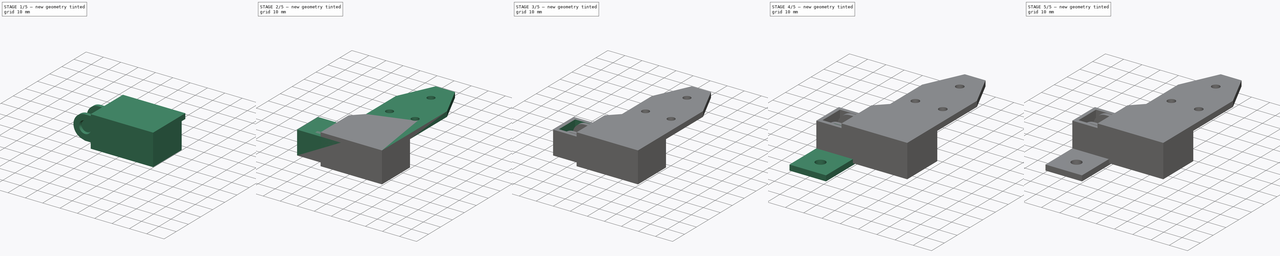
[diagram: build sequence overview — one tinted view per stage of 5, left to right]
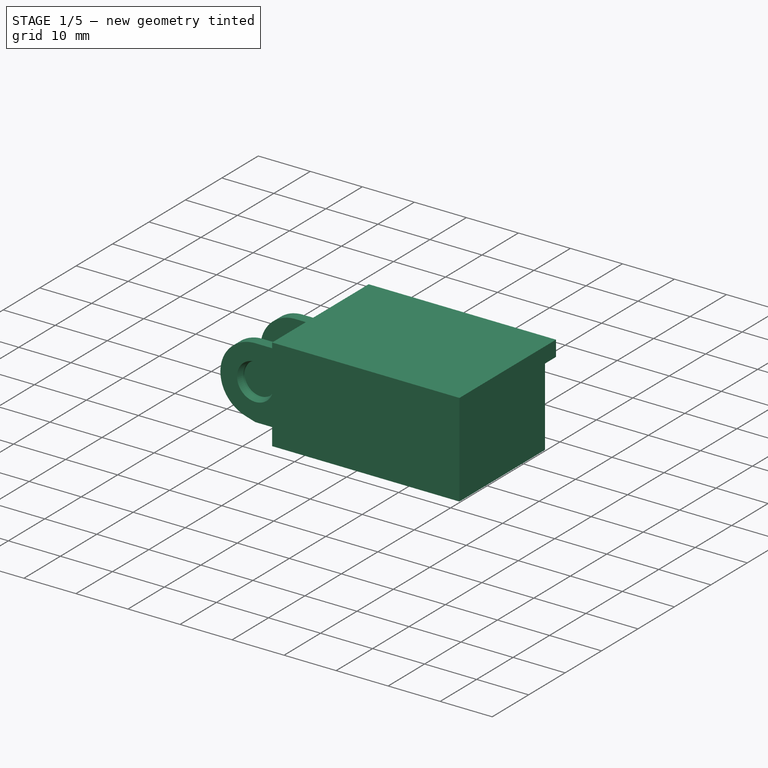
[diagram: stage 1 of 5 — iso view after this stage's code; geometry added in this stage tinted green]
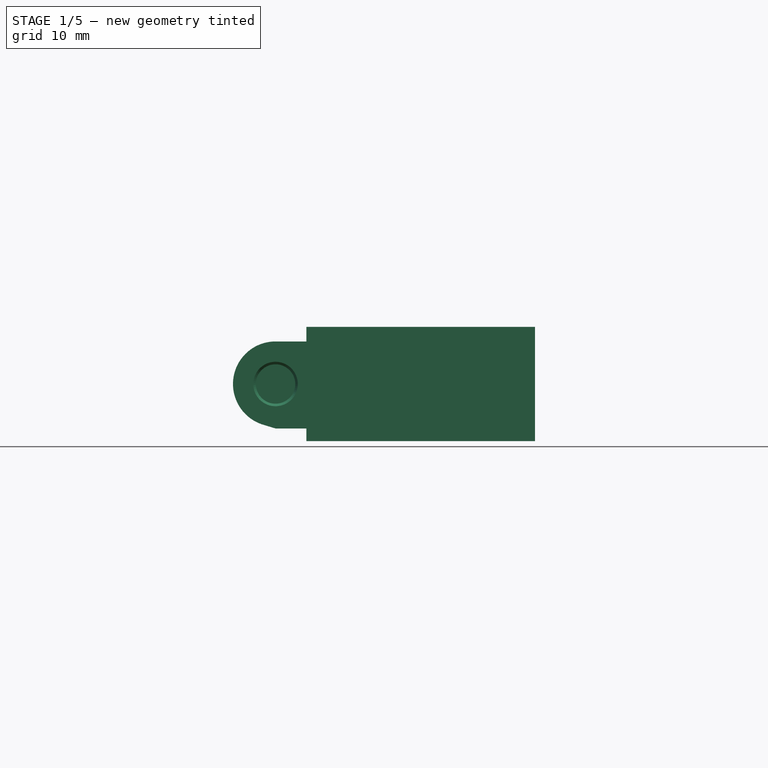
[diagram: stage 1 of 5 — front view after this stage's code; geometry added in this stage tinted green]
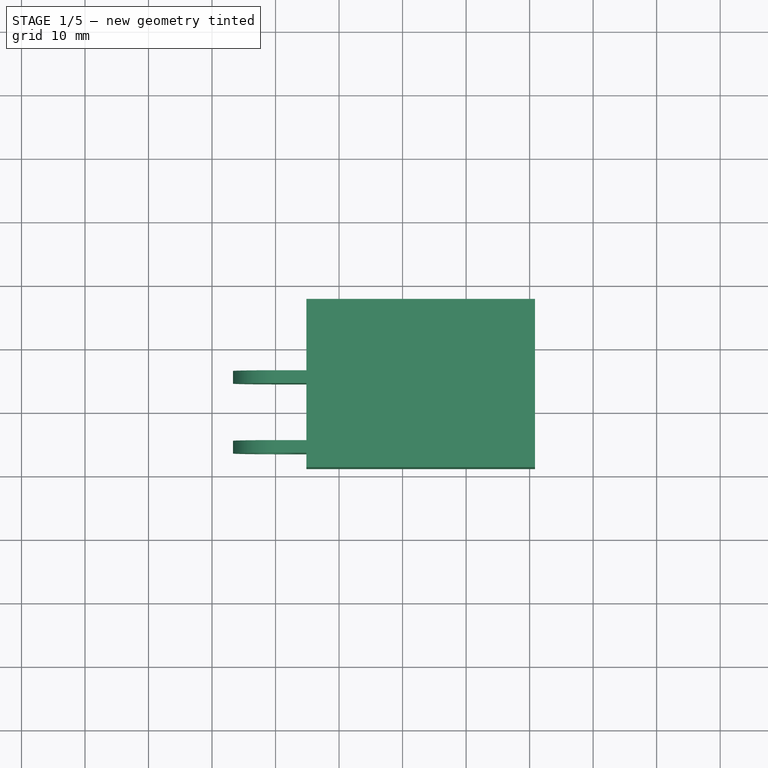
[diagram: stage 1 of 5 — top view after this stage's code; geometry added in this stage tinted green]
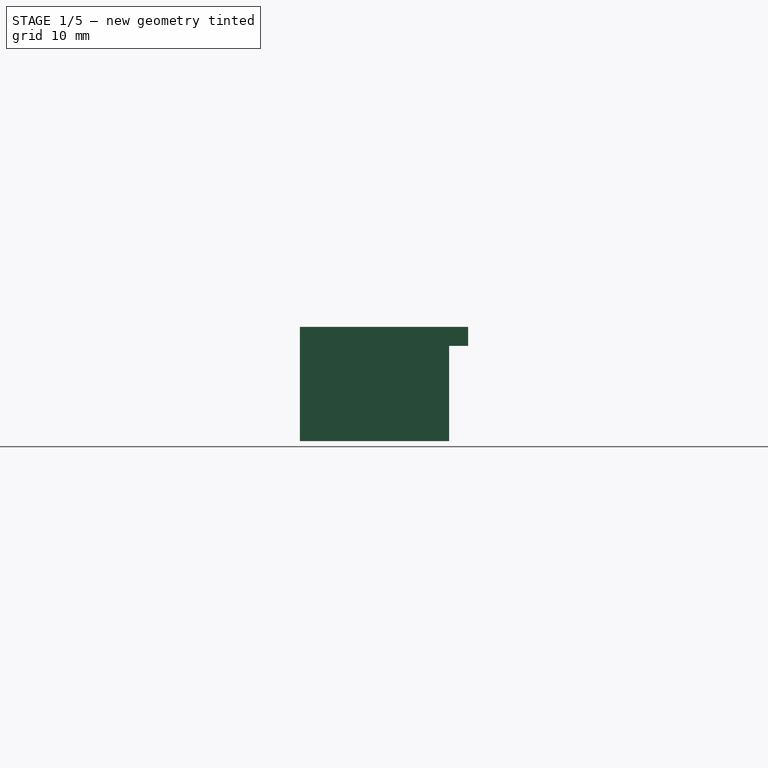
[diagram: stage 1 of 5 — right view after this stage's code; geometry added in this stage tinted green]
FCSTD DOCUMENT  (FreeCAD 0.19R24276 (Git))
Label: _Y_Energy-Chain
License: All rights reserved
LicenseURL: http://en.wikipedia.org/wiki/All_rights_reserved
objects: Sketcher::SketchObject×24, PartDesign::Pocket×13, PartDesign::ShapeBinder×6, PartDesign::Pad×5, PartDesign::Mirrored×4, PartDesign::Body×3, PartDesign::Revolution×2, PartDesign::Groove×2, PartDesign::Chamfer×2, Spreadsheet::Sheet×1
note: 85 computed .brp shape members not serialized (recipe doc carries the construction recipe); baked Part::Feature solids carry a one-line shape summary decoded from their .brp

FEATURE [PartDesign::Body] Body001  label="Connector_Frame"
  Group = -> [ShapeBinder002,ShapeBinder003,Sketch010,Pad001,Sketch011,Pocket005,Sketch012,Pocket006,Sketch013,Pocket007,Sketch014,Pocket008,Sketch015,Revolution001,Mirrored002,Sketch016,Pocket009,Sketch017,Pad002]
  Origin = -> Origin001
  Tip = -> Pad002
FEATURE [PartDesign::ShapeBinder] ShapeBinder004
  Placement = pos=(0,0,0) rot=(1,0,0;1.5708rad)
  Support = -> [Sketch]
  TraceSupport = false
FEATURE [PartDesign::ShapeBinder] ShapeBinder005
  Placement = pos=(0,0,0) rot=(0.57735,0.57735,0.57735;2.0944rad)
  Support = -> [Sketch001]
  TraceSupport = false
FEATURE [Sketcher::SketchObject] Sketch018
  ExternalGeometry = -> [ShapeBinder004,ShapeBinder005]
  FullyConstrained = true
  MapMode = 5
  Support = -> [XY_Plane002]
  sketch-geometry (14):
    g0: LineSegment StartX=-6.7 StartY=6.5 StartZ=0 EndX=-6.7 EndY=4.5 EndZ=0
    g1: LineSegment StartX=-6.7 StartY=4.5 StartZ=0 EndX=4.85 EndY=4.5 EndZ=0
    g2: LineSegment StartX=4.85 StartY=4.5 StartZ=0 EndX=4.85 EndY=-4.5 EndZ=0
    g3: LineSegment StartX=4.85 StartY=-4.5 StartZ=0 EndX=-6.7 EndY=-4.5 EndZ=0
    g4: LineSegment StartX=-6.7 StartY=-4.5 StartZ=0 EndX=-6.7 EndY=-6.5 EndZ=0
    g5: LineSegment StartX=-6.7 StartY=-6.5 StartZ=0 EndX=4.85 EndY=-6.5 EndZ=0
    g6: LineSegment StartX=4.85 StartY=-8.8 StartZ=0 EndX=40.85 EndY=-8.8 EndZ=0
    g7: LineSegment StartX=40.85 StartY=-8.8 StartZ=0 EndX=40.85 EndY=17.7 EndZ=0
    g8: LineSegment StartX=40.85 StartY=17.7 StartZ=0 EndX=4.85 EndY=17.7 EndZ=0
    g9: LineSegment StartX=4.85 StartY=17.7 StartZ=0 EndX=4.85 EndY=6.5 EndZ=0
    g10: LineSegment StartX=4.85 StartY=6.5 StartZ=0 EndX=-6.7 EndY=6.5 EndZ=0
    g11: LineSegment StartX=-6.7 StartY=4.5 StartZ=0 EndX=-6.7 EndY=-4.5 EndZ=0
    g12: LineSegment StartX=4.85 StartY=-6.5 StartZ=0 EndX=4.85 EndY=-8.8 EndZ=0
    g13: LineSegment StartX=40.85 StartY=-9.8 StartZ=0 EndX=-6.7 EndY=-9.8 EndZ=0
  constraints (42):
    c: Vertical(g0)
    c: Coincident(g0,g1)
    c: Horizontal(g1)
    c: Coincident(g1,g2)
    c: Vertical(g2)
    c: Coincident(g2,g3)
    c: Horizontal(g3)
    c: Coincident(g3,g4)
    c: Vertical(g4)
    c: Coincident(g4,g5)
    c: Horizontal(g5)
    c: Horizontal(g6)
    c: Coincident(g6,g7)
    c: Vertical(g7)
    c: Coincident(g7,g8)
    c: Horizontal(g8)
    c: Coincident(g8,g9)
    c: Vertical(g9)
    c: Coincident(g9,g10)
    c: Coincident(g10,g0)
    c: Horizontal(g10)
    c: Coincident(g11,g0)
    c: Coincident(g11,g3)
    c: Equal(g5,g3)
    c: Equal(g3,g1)
    c: Equal(g1,g10)
    c: Equal(g4,g0)
    c: PointOnObject(g-3,g2)
    c: PointOnObject(g-4,g11)
    c: PointOnObject(g-7,g1)
    c: PointOnObject(g-8,g3)
    c: DistanceX(g8,g8) = 36
    c: PointOnObject(g-10,g5)
    c: Coincident(g12,g5)
    c: Coincident(g12,g6)
    c: Vertical(g12)
    c: Horizontal(g-5,g6)
    c: DistanceY(g-1,g7) = 17.7
    c: Horizontal(g13)
    c: Vertical(g4,g13)
    c: Vertical(g13,g6)
    c: DistanceY(g13,g8) = 27.5
FEATURE [PartDesign::Pad] Pad003
  AllowMultiFace = false
  Direction = (1,1,1)
  Length = 18
  Length2 = 100
  Midplane = true
  Profile = -> Sketch018
  Type = 0
FEATURE [Sketcher::SketchObject] Sketch019
  ExternalGeometry = -> [ShapeBinder004]
  FullyConstrained = true
  MapMode = 5
  Placement = pos=(0,0,0) rot=(1,0,0;1.5708rad)
  Support = -> [XZ_Plane002]
  sketch-geometry (10):
    g0: ArcOfCircle CenterX=0 CenterY=0 CenterZ=0 NormalX=0 NormalY=0 NormalZ=1 AngleXU=0 Radius=6.7 StartAngle=1.5708 EndAngle=4.41856
    g1: LineSegment StartX=-1.94043 StartY=-6.41286 StartZ=0 EndX=-2.96208e-08 EndY=-7 EndZ=0
    g2: LineSegment StartX=-2.96208e-08 StartY=-7 StartZ=0 EndX=4.85 EndY=-7 EndZ=0
    g3: LineSegment StartX=4.85 StartY=6.7 StartZ=0 EndX=0 EndY=6.7 EndZ=0
    g4: LineSegment StartX=4.85 StartY=6.7 StartZ=0 EndX=4.85 EndY=9.85 EndZ=0
    g5: LineSegment StartX=4.85 StartY=9.85 StartZ=0 EndX=-9.85 EndY=9.85 EndZ=0
    g6: LineSegment StartX=-9.85 StartY=9.85 StartZ=0 EndX=-9.85 EndY=-10.15 EndZ=0
    g7: LineSegment StartX=-9.85 StartY=-10.15 StartZ=0 EndX=4.85 EndY=-10.15 EndZ=0
    g8: LineSegment StartX=4.85 StartY=-10.15 StartZ=0 EndX=4.85 EndY=-7 EndZ=0
    g9: LineSegment StartX=-6.7 StartY=8e-16 StartZ=0 EndX=-9.85 EndY=8e-16 EndZ=0
  constraints (26):
    c: PointOnObject(g0,g-2)
    c: Coincident(g0,g-4)
    c: Tangent(g0,g1) = -1.5708
    c: Coincident(g1,g2)
    c: Coincident(g2,g-3)
    c: Horizontal(g2)
    c: Coincident(g3,g0)
    c: Coincident(g3,g4)
    c: Vertical(g4)
    c: Coincident(g4,g5)
    c: Horizontal(g5)
    c: Coincident(g5,g6)
    c: Vertical(g6)
    c: Coincident(g6,g7)
    c: Horizontal(g7)
    c: Coincident(g7,g8)
    c: Coincident(g8,g2)
    c: Vertical(g8)
    c: Equal(g8,g4)
    c: Coincident(g0,g-1)
    c: Coincident(g9,g-5)
    c: PointOnObject(g9,g6)
    c: Horizontal(g9)
    c: Equal(g4,g9)
    c: DistanceY(g6,g6) = 20
    c: Coincident(g3,g-6)
FEATURE [PartDesign::Pocket] Pocket010
  AllowMultiFace = false
  BaseFeature = -> Pad003
  Length = 5
  Length2 = 100
  Midplane = true
  Profile = -> Sketch019
  Type = 1
FEATURE [Sketcher::SketchObject] Sketch020
  ExternalGeometry = -> [ShapeBinder004,ShapeBinder005]
  FullyConstrained = true
  MapMode = 5
  Support = -> [XY_Plane002]
  expr: Constraints[11] = <<params>>.wt * 0.2
  expr: Constraints[6] = <<params>>.wt * 0.75
  sketch-geometry (6):
    g0: LineSegment StartX=8e-16 StartY=6.5 StartZ=0 EndX=3.5 EndY=6.5 EndZ=0
    g1: LineSegment StartX=3.5 StartY=6.5 StartZ=0 EndX=3.09963 EndY=5.4 EndZ=0
    g2: LineSegment StartX=3.09963 StartY=5 StartZ=0 EndX=0 EndY=5 EndZ=0
    g3: LineSegment StartX=0 StartY=5 StartZ=0 EndX=8e-16 EndY=6.5 EndZ=0
    g4: LineSegment StartX=3.09963 StartY=5.4 StartZ=0 EndX=3.09963 EndY=5 EndZ=0
    g5: LineSegment StartX=3.5 StartY=0 StartZ=0 EndX=3.5 EndY=6.5 EndZ=0
  constraints (16):
    c: Horizontal(g0)
    c: Coincident(g0,g1)
    c: PointOnObject(g2,g-2)
    c: Horizontal(g2)
    c: Coincident(g2,g3)
    c: Coincident(g3,g0)
    c: DistanceY(g3,g3) = 1.5
    c: Angle(g0,g1) = 1.22173
    c: Vertical(g4)
    c: Coincident(g1,g4)
    c: Coincident(g2,g4)
    c: DistanceY(g4,g4) = 0.4
    c: Vertical(g5)
    c: Coincident(g5,g0)
    c: Coincident(g5,g-3)
    c: Coincident(g0,g-4)
FEATURE [PartDesign::Groove] Groove001
  AllowMultiFace = false
  Angle = 360
  Axis = (5e-16,1,0)
  Base = (0,5,0)
  BaseFeature = -> Pocket010
  Profile = -> Sketch020
  ReferenceAxis = -> Sketch020 [Edge5]
FEATURE [PartDesign::Mirrored] Mirrored003
  BaseFeature = -> Groove001
  MirrorPlane = -> XZ_Plane002
  Originals = -> [Groove001]
FEATURE [Sketcher::SketchObject] Sketch021
  AttachmentOffset = pos=(0,0,-9) rot=(0,0,1;0rad)
  ExternalGeometry = -> [Sketch018]
  FullyConstrained = true
  MapMode = 5
  Placement = pos=(0,0,-9) rot=(0,0,1;0rad)
  Support = -> [XY_Plane002]
  expr: Constraints[5] = <<params>>.wt
  expr: .AttachmentOffset.Base.z = -Pad003.Length / 2
  sketch-geometry (9):
    g0: LineSegment StartX=38.35 StartY=14.7 StartZ=0 EndX=38.35 EndY=-6.8 EndZ=0
    g1: LineSegment StartX=38.35 StartY=-6.8 StartZ=0 EndX=13.35 EndY=-6.8 EndZ=0
    g2: LineSegment StartX=13.35 StartY=-6.8 StartZ=0 EndX=13.35 EndY=14.7 EndZ=0
    g3: LineSegment StartX=25.85 StartY=17.7 StartZ=0 EndX=25.85 EndY=-8.8 EndZ=0
    g4: LineSegment StartX=38.35 StartY=14.7 StartZ=0 EndX=41.85 EndY=14.7 EndZ=0
    g5: LineSegment StartX=41.85 StartY=14.7 StartZ=0 EndX=41.85 EndY=18.7 EndZ=0
    g6: LineSegment StartX=41.85 StartY=18.7 StartZ=0 EndX=3.85 EndY=18.7 EndZ=0
    g7: LineSegment StartX=3.85 StartY=18.7 StartZ=0 EndX=3.85 EndY=14.7 EndZ=0
    g8: LineSegment StartX=3.85 StartY=14.7 StartZ=0 EndX=13.35 EndY=14.7 EndZ=0
  constraints (27):
    c: Coincident(g0,g1)
    c: Coincident(g1,g2)
    c: Horizontal(g1)
    c: Vertical(g0)
    c: Vertical(g2)
    c: DistanceY(g-3,g0) = 2
    c: Horizontal(g-4,g3)
    c: Horizontal(g3,g-3)
    c: DistanceX(g3,g-3) = 15
    c: Symmetric(g0,g1,g3)
    c: Equal(g2,g0)
    c: Coincident(g0,g4)
    c: Horizontal(g4)
    c: Coincident(g4,g5)
    c: Vertical(g5)
    c: Coincident(g5,g6)
    c: Horizontal(g6)
    c: Coincident(g6,g7)
    c: Vertical(g7)
    c: Coincident(g7,g8)
    c: Coincident(g8,g2)
    c: Horizontal(g8)
    c: DistanceY(g5,g5) = 4
    c: DistanceY(g4,g-4) = 3
    c: DistanceX(g-4,g5) = 1
    c: DistanceX(g6,g-5) = 1
    c: DistanceX(g2,g0) = 25
FEATURE [PartDesign::Pocket] Pocket011
  AllowMultiFace = false
  BaseFeature = -> Mirrored003
  Length = 15
  Length2 = 100
  Profile = -> Sketch021
  Reversed = true
  Type = 0
  expr: Length = Pad003.Length - 3mm
FEATURE [Sketcher::SketchObject] Sketch022
  ExternalGeometry = -> [ShapeBinder005]
  FullyConstrained = true
  MapMode = 5
  Placement = pos=(0,0,0) rot=(0.57735,0.57735,0.57735;2.0944rad)
  Support = -> [YZ_Plane002]
  sketch-geometry (8):
    g0: LineSegment StartX=-3.5 StartY=4.7 StartZ=0 EndX=3.5 EndY=4.7 EndZ=0
    g1: LineSegment StartX=4.5 StartY=3.7 StartZ=0 EndX=4.5 EndY=-3.7 EndZ=0
    g2: LineSegment StartX=3.5 StartY=-4.7 StartZ=0 EndX=-3.5 EndY=-4.7 EndZ=0
    g3: LineSegment StartX=-4.5 StartY=-3.7 StartZ=0 EndX=-4.5 EndY=3.7 EndZ=0
    g4: ArcOfCircle CenterX=3.5 CenterY=3.7 CenterZ=0 NormalX=0 NormalY=0 NormalZ=1 AngleXU=0 Radius=1 StartAngle=1e-16 EndAngle=1.5708
    g5: ArcOfCircle CenterX=3.5 CenterY=-3.7 CenterZ=0 NormalX=0 NormalY=0 NormalZ=1 AngleXU=0 Radius=1 StartAngle=4.71239 EndAngle=6.28319
    g6: ArcOfCircle CenterX=-3.5 CenterY=-3.7 CenterZ=0 NormalX=0 NormalY=0 NormalZ=1 AngleXU=0 Radius=1 StartAngle=3.14159 EndAngle=4.71239
    g7: ArcOfCircle CenterX=-3.5 CenterY=3.7 CenterZ=0 NormalX=0 NormalY=0 NormalZ=1 AngleXU=0 Radius=1 StartAngle=1.5708 EndAngle=3.14159
  constraints (16):
    c: Horizontal(g0)
    c: Horizontal(g2)
    c: Vertical(g1)
    c: Tangent(g0,g4) = 1.5708
    c: Tangent(g1,g4) = 1.5708
    c: Tangent(g1,g5) = 1.5708
    c: Tangent(g2,g5) = 1.5708
    c: Tangent(g2,g6) = 1.5708
    c: Tangent(g3,g6) = 1.5708
    c: Tangent(g3,g7) = 1.5708
    c: Tangent(g0,g7) = 1.5708
    c: Coincident(g7,g-3)
    c: Coincident(g-4,g4)
    c: Coincident(g5,g-5)
    c: Coincident(g-6,g6)
    c: Equal(g7,g-3)
FEATURE [PartDesign::Pocket] Pocket012
  AllowMultiFace = false
  BaseFeature = -> Pocket011
  Length = 16
  Length2 = 100
  Profile = -> Sketch022
  Reversed = true
  Type = 0
  expr: Length = <<params>>.pitch
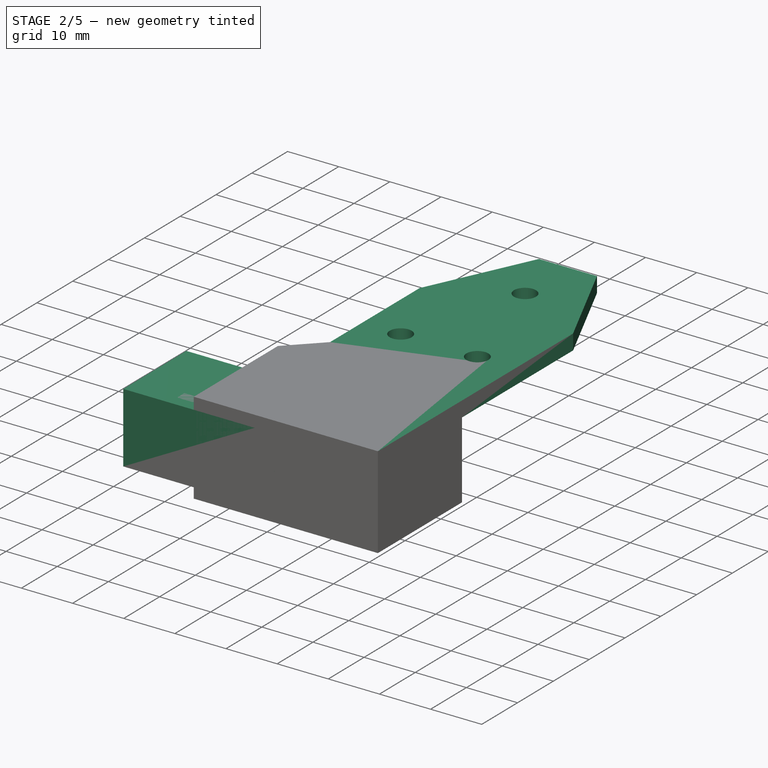
[diagram: stage 2 of 5 — iso view after this stage's code; geometry added in this stage tinted green]
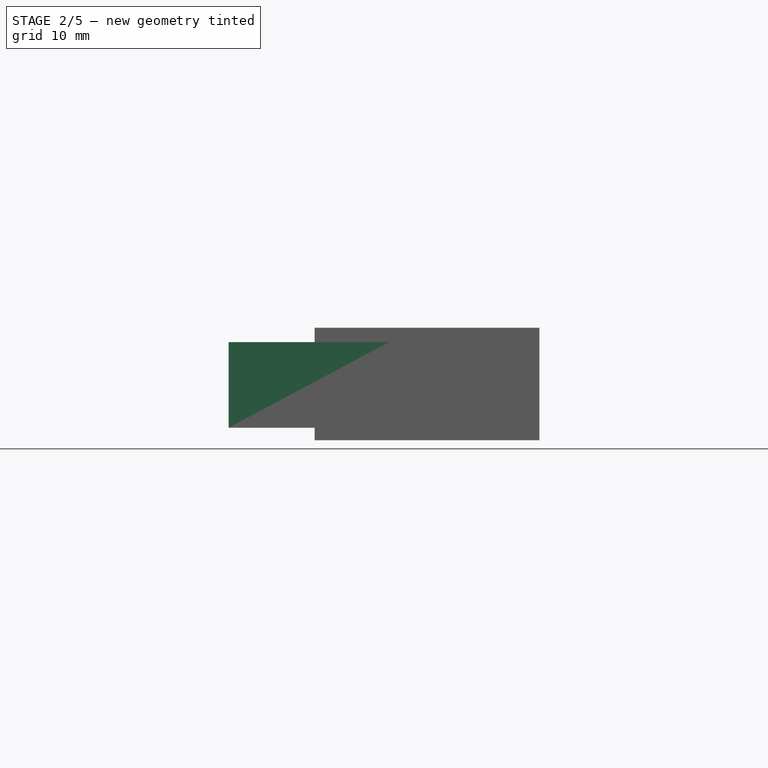
[diagram: stage 2 of 5 — front view after this stage's code; geometry added in this stage tinted green]
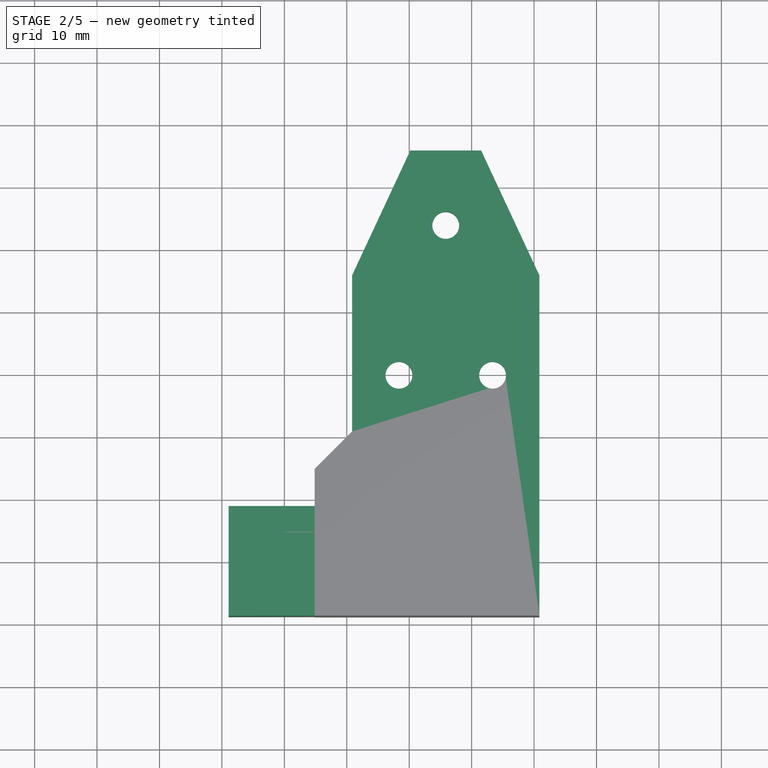
[diagram: stage 2 of 5 — top view after this stage's code; geometry added in this stage tinted green]
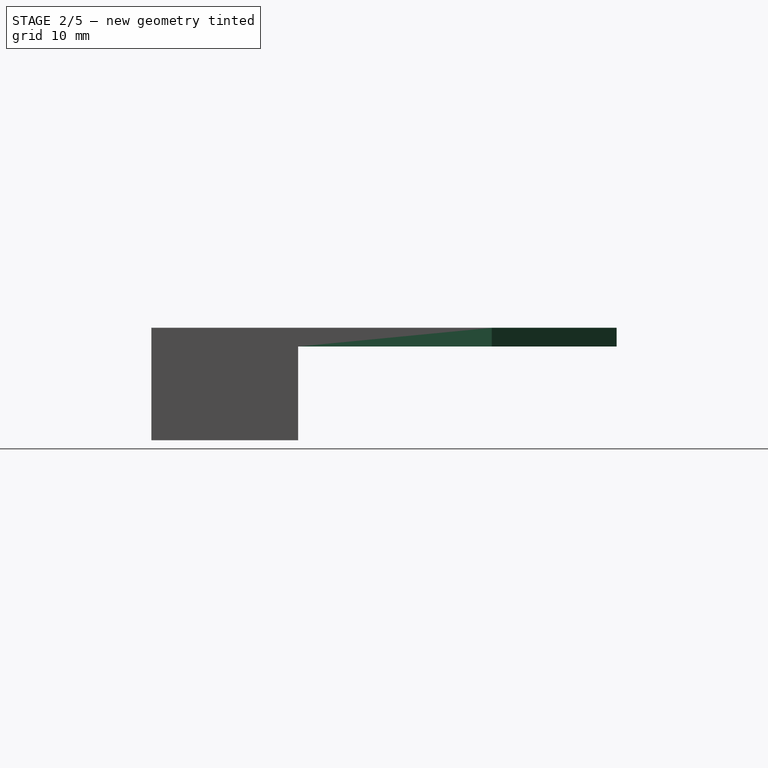
[diagram: stage 2 of 5 — right view after this stage's code; geometry added in this stage tinted green]
FEATURE [PartDesign::Body] Body  label="Chain-Link"
  Group = -> [ShapeBinder,ShapeBinder001,Sketch002,Pad,Sketch003,Pocket,Sketch004,Pocket001,Sketch005,Pocket002,Sketch006,Pocket003,Sketch007,Revolution,Mirrored,Sketch008,Groove,Mirrored001,Sketch009,Pocket004]
  Origin = -> Origin
  Tip = -> Pocket004
FEATURE [PartDesign::ShapeBinder] ShapeBinder002
  Placement = pos=(0,0,0) rot=(1,0,0;1.5708rad)
  Support = -> [Sketch]
  TraceSupport = false
FEATURE [PartDesign::ShapeBinder] ShapeBinder003
  Placement = pos=(0,0,0) rot=(0.57735,0.57735,0.57735;2.0944rad)
  Support = -> [Sketch001]
  TraceSupport = false
FEATURE [Sketcher::SketchObject] Sketch010
  ExternalGeometry = -> [ShapeBinder003,ShapeBinder002]
  FullyConstrained = false
  MapMode = 5
  Support = -> [XY_Plane001]
  sketch-geometry (4):
    g0: LineSegment StartX=-8.9267 StartY=-8.8 StartZ=0 EndX=20.55 EndY=-8.8 EndZ=0
    g1: LineSegment StartX=20.55 StartY=-8.8 StartZ=0 EndX=20.55 EndY=8.8 EndZ=0
    g2: LineSegment StartX=20.55 StartY=8.8 StartZ=0 EndX=-8.9267 EndY=8.8 EndZ=0
    g3: LineSegment StartX=-8.9267 StartY=8.8 StartZ=0 EndX=-8.9267 EndY=-8.8 EndZ=0
  constraints (12):
    c: Horizontal(g0)
    c: Coincident(g0,g1)
    c: Vertical(g1)
    c: Coincident(g1,g2)
    c: Horizontal(g2)
    c: Horizontal(g0,g-3)
    c: Horizontal(g-4,g2)
    c: PointOnObject(g-5,g1)
    c: Coincident(g3,g0)
    c: Coincident(g3,g2)
    c: Vertical(g3)
    c: DistanceX(g2,g-6) = 20
FEATURE [PartDesign::Pad] Pad001
  AllowMultiFace = false
  Direction = (1,1,1)
  Length = 14
  Length2 = 100
  Midplane = true
  Profile = -> Sketch010
  Type = 0
  expr: Length = <<params>>.ih + 2 * (<<params>>.wt + <<params>>.gap)
FEATURE [Sketcher::SketchObject] Sketch011
  ExternalGeometry = -> [ShapeBinder002]
  FullyConstrained = false
  MapMode = 5
  Placement = pos=(0,0,0) rot=(1,0,0;1.5708rad)
  Support = -> [XZ_Plane001]
  sketch-geometry (14):
    g0: LineSegment StartX=-8.9267 StartY=-7 StartZ=0 EndX=-8.9267 EndY=6.7 EndZ=0
    g1: LineSegment StartX=-8.9267 StartY=6.7 StartZ=0 EndX=16.7563 EndY=6.7 EndZ=0
    g2: LineSegment StartX=16.7563 StartY=6.7 StartZ=0 EndX=19.681 EndY=2.67442 EndZ=0
    g3: ArcOfCircle CenterX=16 CenterY=0 CenterZ=0 NormalX=0 NormalY=0 NormalZ=1 AngleXU=0 Radius=4.55 StartAngle=1e-16 EndAngle=0.628319
    g4: LineSegment StartX=20.55 StartY=6e-16 StartZ=0 EndX=20.55 EndY=-7 EndZ=0
    g5: LineSegment StartX=20.55 StartY=-7 StartZ=0 EndX=-8.9267 EndY=-7 EndZ=0
    g6: LineSegment StartX=-10.9267 StartY=8.7 StartZ=0 EndX=22.55 EndY=8.7 EndZ=0
    g7: LineSegment StartX=22.55 StartY=8.7 StartZ=0 EndX=22.55 EndY=-9 EndZ=0
    g8: LineSegment StartX=22.55 StartY=-9 StartZ=0 EndX=-10.9267 EndY=-9 EndZ=0
    g9: LineSegment StartX=-10.9267 StartY=-9 StartZ=0 EndX=-10.9267 EndY=8.7 EndZ=0
    g10: LineSegment StartX=-8.9267 StartY=-7 StartZ=0 EndX=-8.9267 EndY=-9 EndZ=0
    g11: LineSegment StartX=-8.9267 StartY=6.7 StartZ=0 EndX=-8.9267 EndY=8.7 EndZ=0
    g12: LineSegment StartX=-8.9267 StartY=0 StartZ=0 EndX=-10.9267 EndY=0 EndZ=0
    g13: LineSegment StartX=20.55 StartY=6e-16 StartZ=0 EndX=22.55 EndY=6e-16 EndZ=0
  constraints (39):
    c: Vertical(g0)
    c: Coincident(g0,g1)
    c: Horizontal(g1)
    c: Coincident(g1,g2)
    c: Tangent(g2,g3) = 1.5708
    c: Tangent(g3,g4) = 1.5708
    c: Coincident(g5,g0)
    c: Horizontal(g5)
    c: Coincident(g3,g-6)
    c: Coincident(g1,g-3)
    c: Vertical(g4)
    c: Coincident(g6,g7)
    c: Coincident(g7,g8)
    c: Coincident(g8,g9)
    c: Coincident(g9,g6)
    c: Horizontal(g6)
    c: Horizontal(g8)
    c: Vertical(g7)
    c: Vertical(g9)
    c: Coincident(g10,g0)
    c: PointOnObject(g10,g8)
    c: Vertical(g10)
    c: Coincident(g11,g0)
    c: PointOnObject(g11,g6)
    c: Vertical(g11)
    c: PointOnObject(g12,g9)
    c: Horizontal(g12)
    c: Coincident(g13,g3)
    c: PointOnObject(g13,g7)
    c: Horizontal(g13)
    c: Equal(g13,g10)
    c: Equal(g10,g12)
    c: Equal(g12,g11)
    c: DistanceX(g13,g13) = 2
    c: PointOnObject(g12,g0)
    c: Coincident(g5,g4)
    c: Coincident(g4,g-5)
    c: DistanceX(g10,g-7) = 20
    c: Horizontal(g12,g-1)
FEATURE [PartDesign::Pocket] Pocket005
  AllowMultiFace = false
  BaseFeature = -> Pad001
  Length = 5
  Length2 = 100
  Midplane = true
  Profile = -> Sketch011
  Type = 1
FEATURE [Sketcher::SketchObject] Sketch023
  AttachmentOffset = pos=(0,0,9) rot=(0,0,1;0rad)
  ExternalGeometry = -> [Sketch018]
  FullyConstrained = true
  MapMode = 5
  Placement = pos=(0,0,9) rot=(0,0,1;0rad)
  Support = -> [XY_Plane002]
  expr: .AttachmentOffset.Base.z = Pad003.Length / 2
  sketch-geometry (10):
    g0: LineSegment StartX=10.85 StartY=0 StartZ=0 EndX=10.85 EndY=45.7 EndZ=0
    g1: LineSegment StartX=10.85 StartY=45.7 StartZ=0 EndX=20.1762 EndY=65.7 EndZ=0
    g2: LineSegment StartX=20.1762 StartY=65.7 StartZ=0 EndX=31.5238 EndY=65.7 EndZ=0
    g3: LineSegment StartX=31.5238 StartY=65.7 StartZ=0 EndX=40.85 EndY=45.7 EndZ=0
    g4: LineSegment StartX=40.85 StartY=45.7 StartZ=0 EndX=40.85 EndY=0 EndZ=0
    g5: LineSegment StartX=25.85 StartY=0 StartZ=0 EndX=25.85 EndY=65.7 EndZ=0
    g6: Circle CenterX=25.85 CenterY=53.7 CenterZ=0 NormalX=0 NormalY=0 NormalZ=1 AngleXU=0 Radius=2.15
    g7: Circle CenterX=18.35 CenterY=29.7 CenterZ=0 NormalX=0 NormalY=0 NormalZ=1 AngleXU=0 Radius=2.15
    g8: Circle CenterX=33.35 CenterY=29.7 CenterZ=0 NormalX=0 NormalY=0 NormalZ=1 AngleXU=0 Radius=2.15
    g9: LineSegment StartX=10.85 StartY=0 StartZ=0 EndX=40.85 EndY=0 EndZ=0
  constraints (28):
    c: Vertical(g0)
    c: Coincident(g0,g1)
    c: Coincident(g1,g2)
    c: Coincident(g2,g3)
    c: Coincident(g3,g4)
    c: Vertical(g4)
    c: PointOnObject(g5,g2)
    c: Symmetric(g0,g4,g5)
    c: Symmetric(g2,g1,g5)
    c: Equal(g0,g4)
    c: Angle(g1,g3) = 0.872665
    c: PointOnObject(g6,g5)
    c: Symmetric(g7,g8,g5)
    c: DistanceY(g0,g1) = 20
    c: DistanceY(g6,g2) = 12
    c: DistanceY(g8,g6) = 24
    c: DistanceX(g7,g8) = 15
    c: Equal(g7,g8)
    c: Equal(g8,g6)
    c: Diameter(g6) = 4.3
    c: DistanceX(g0,g4) = 30
    c: PointOnObject(g-3,g4)
    c: DistanceY(g-3,g2) = 48
    c: PointOnObject(g0,g-1)
    c: Coincident(g9,g0)
    c: Coincident(g9,g4)
    c: Horizontal(g9)
    c: PointOnObject(g5,g9)
FEATURE [PartDesign::Pad] Pad004
  AllowMultiFace = false
  BaseFeature = -> Pocket012
  Direction = (1,1,1)
  Length = 3
  Length2 = 100
  Profile = -> Sketch023
  Reversed = true
  Type = 0
FEATURE [PartDesign::Chamfer] Chamfer
  Angle = 45
  Base = -> Pad004 [Edge36,Edge76]
  BaseFeature = -> Pad004
  ChamferType = 0
  FlipDirection = false
  Refine = true
  Size = 3
  Size2 = 1
  SupportTransform = false
FEATURE [PartDesign::Chamfer] Chamfer001
  Angle = 45
  Base = -> Chamfer [Edge93]
  BaseFeature = -> Chamfer
  ChamferType = 0
  FlipDirection = false
  Refine = true
  Size = 2.99
  Size2 = 1
  SupportTransform = false
FEATURE [PartDesign::Body] Body002  label="Connector_Bed"
  Group = -> [ShapeBinder004,ShapeBinder005,Sketch018,Pad003,Sketch019,Pocket010,Sketch020,Groove001,Mirrored003,Sketch021,Pocket011,Sketch022,Pocket012,Sketch023,Pad004,Chamfer,Chamfer001]
  Origin = -> Origin002
  Tip = -> Chamfer001
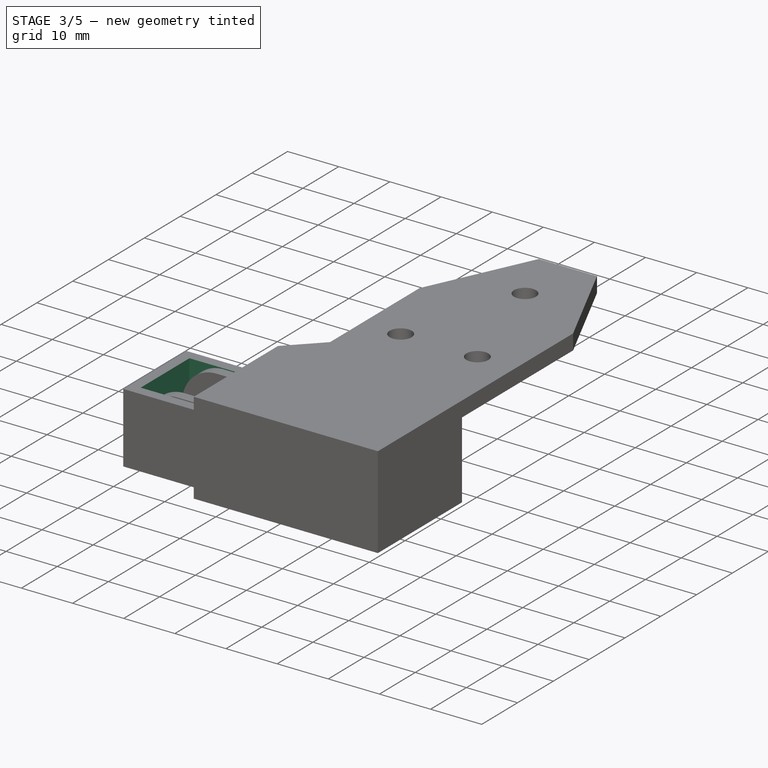
[diagram: stage 3 of 5 — iso view after this stage's code; geometry added in this stage tinted green]
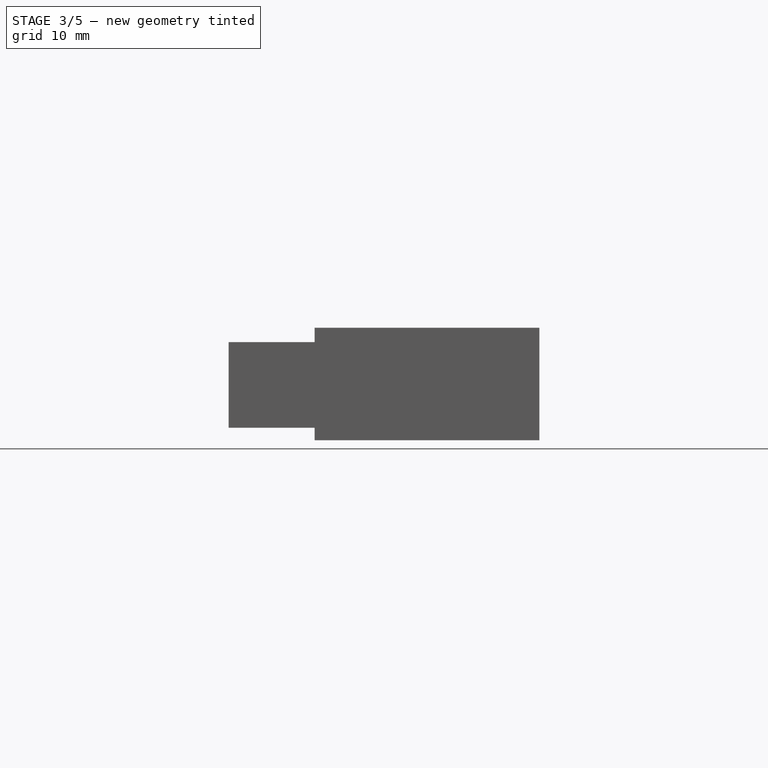
[diagram: stage 3 of 5 — front view after this stage's code; geometry added in this stage tinted green]
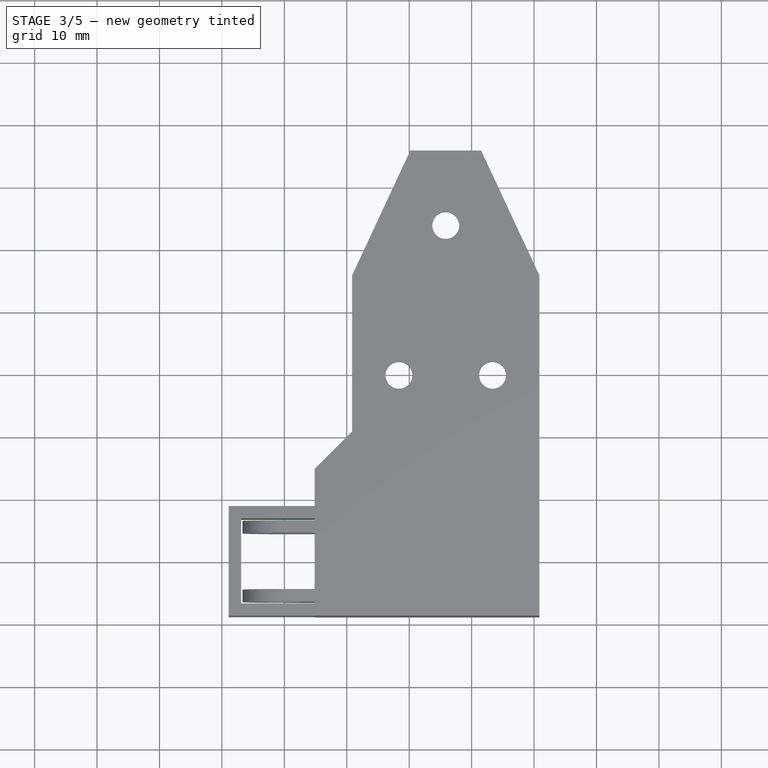
[diagram: stage 3 of 5 — top view after this stage's code; geometry added in this stage tinted green]
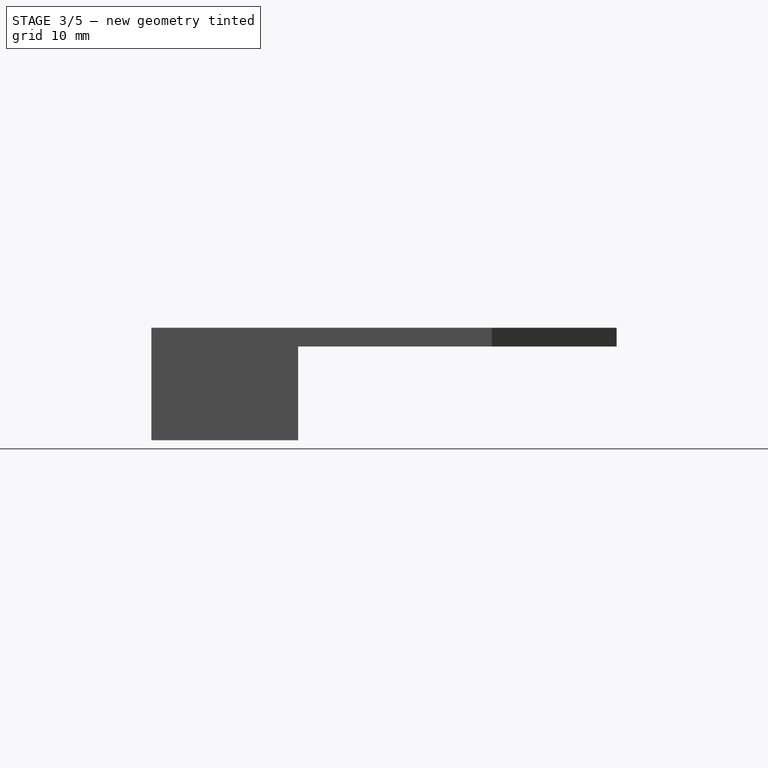
[diagram: stage 3 of 5 — right view after this stage's code; geometry added in this stage tinted green]
FEATURE [Sketcher::SketchObject] Sketch012
  ExternalGeometry = -> [ShapeBinder002]
  FullyConstrained = false
  MapMode = 5
  Placement = pos=(0,0,0) rot=(1,0,0;1.5708rad)
  Support = -> [XZ_Plane001]
  sketch-geometry (8):
    g0: ArcOfCircle CenterX=16 CenterY=0 CenterZ=0 NormalX=0 NormalY=0 NormalZ=1 AngleXU=0 Radius=7 StartAngle=2.35155 EndAngle=3.93164
    g1: LineSegment StartX=11.0733 StartY=4.97269 StartZ=0 EndX=11.0733 EndY=6.7 EndZ=0
    g2: LineSegment StartX=11.0733 StartY=6.7 StartZ=0 EndX=16.7563 EndY=6.7 EndZ=0
    g3: LineSegment StartX=16.7563 StartY=6.7 StartZ=0 EndX=19.681 EndY=2.67442 EndZ=0
    g4: LineSegment StartX=20.55 StartY=-7 StartZ=0 EndX=20.55 EndY=0 EndZ=0
    g5: LineSegment StartX=11.0733 StartY=-4.97269 StartZ=0 EndX=11.0733 EndY=-7 EndZ=0
    g6: LineSegment StartX=11.0733 StartY=-7 StartZ=0 EndX=20.55 EndY=-7 EndZ=0
    g7: ArcOfCircle CenterX=16 CenterY=0 CenterZ=0 NormalX=0 NormalY=0 NormalZ=1 AngleXU=0 Radius=4.55 StartAngle=0 EndAngle=0.628319
  constraints (20):
    c: Coincident(g0,g-3)
    c: Coincident(g0,g-4)
    c: Coincident(g1,g0)
    c: Coincident(g2,g1)
    c: Coincident(g2,g-5)
    c: Horizontal(g2)
    c: Coincident(g3,g2)
    c: Coincident(g3,g-6)
    c: Coincident(g4,g-7)
    c: PointOnObject(g4,g-1)
    c: Coincident(g5,g0)
    c: Vertical(g5)
    c: Coincident(g6,g5)
    c: Coincident(g6,g4)
    c: Horizontal(g6)
    c: Coincident(g7,g0)
    c: Coincident(g7,g3)
    c: Coincident(g7,g4)
    c: Vertical(g1)
    c: Vertical(g0,g0)
FEATURE [PartDesign::Pocket] Pocket006
  AllowMultiFace = false
  BaseFeature = -> Pocket005
  Length = 13.6
  Length2 = 100
  Midplane = true
  Profile = -> Sketch012
  Type = 0
  expr: Length = <<params>>.iw + 2 * (<<params>>.wt + <<params>>.gap)
FEATURE [Sketcher::SketchObject] Sketch013
  ExternalGeometry = -> [ShapeBinder002,ShapeBinder003,Sketch010]
  FullyConstrained = false
  MapMode = 5
  Support = -> [XY_Plane001]
  expr: Constraints[11] = <<params>>.wt
  sketch-geometry (4):
    g0: LineSegment StartX=-6.9267 StartY=6.8 StartZ=0 EndX=4.85 EndY=6.8 EndZ=0
    g1: LineSegment StartX=4.85 StartY=6.8 StartZ=0 EndX=4.85 EndY=-6.8 EndZ=0
    g2: LineSegment StartX=4.85 StartY=-6.8 StartZ=0 EndX=-6.9267 EndY=-6.8 EndZ=0
    g3: LineSegment StartX=-6.9267 StartY=-6.8 StartZ=0 EndX=-6.9267 EndY=6.8 EndZ=0
  constraints (12):
    c: Coincident(g0,g1)
    c: Coincident(g1,g2)
    c: Coincident(g2,g3)
    c: Coincident(g3,g0)
    c: Horizontal(g0)
    c: Horizontal(g2)
    c: Vertical(g1)
    c: Vertical(g3)
    c: PointOnObject(g-3,g1)
    c: PointOnObject(g-4,g0)
    c: PointOnObject(g-5,g2)
    c: DistanceX(g-6,g0) = 2
FEATURE [PartDesign::Pocket] Pocket007
  AllowMultiFace = false
  BaseFeature = -> Pocket006
  Length = 5
  Length2 = 100
  Midplane = true
  Profile = -> Sketch013
  Type = 1
FEATURE [Sketcher::SketchObject] Sketch014
  ExternalGeometry = -> [ShapeBinder003]
  FullyConstrained = false
  MapMode = 5
  Placement = pos=(0,0,0) rot=(0.57735,0.57735,0.57735;2.0944rad)
  Support = -> [YZ_Plane001]
  sketch-geometry (8):
    g0: ArcOfCircle CenterX=-3.5 CenterY=3.7 CenterZ=0 NormalX=0 NormalY=0 NormalZ=1 AngleXU=0 Radius=1 StartAngle=1.57079 EndAngle=3.1416
    g1: ArcOfCircle CenterX=3.5 CenterY=3.7 CenterZ=0 NormalX=0 NormalY=0 NormalZ=1 AngleXU=0 Radius=1 StartAngle=3.92668e-08 EndAngle=1.5708
    g2: ArcOfCircle CenterX=3.5 CenterY=-3.7 CenterZ=0 NormalX=0 NormalY=0 NormalZ=1 AngleXU=0 Radius=1 StartAngle=4.71239 EndAngle=6.28319
    g3: ArcOfCircle CenterX=-3.5 CenterY=-3.7 CenterZ=0 NormalX=0 NormalY=0 NormalZ=1 AngleXU=0 Radius=1 StartAngle=3.14159 EndAngle=4.71239
    g4: LineSegment StartX=-4.5 StartY=3.69999 StartZ=0 EndX=-4.5 EndY=-3.7 EndZ=0
    g5: LineSegment StartX=-3.49999 StartY=4.7 StartZ=0 EndX=3.5 EndY=4.7 EndZ=0
    g6: LineSegment StartX=4.5 StartY=3.7 StartZ=0 EndX=4.5 EndY=-3.7 EndZ=0
    g7: LineSegment StartX=3.5 StartY=-4.7 StartZ=0 EndX=-3.5 EndY=-4.7 EndZ=0
  constraints (24):
    c: Coincident(g1,g-4)
    c: Coincident(g2,g-5)
    c: Coincident(g3,g-6)
    c: Coincident(g4,g0)
    c: Coincident(g4,g3)
    c: Vertical(g4)
    c: Coincident(g5,g0)
    c: Coincident(g5,g1)
    c: Horizontal(g5)
    c: Coincident(g6,g1)
    c: Coincident(g6,g2)
    c: Vertical(g6)
    c: Coincident(g7,g2)
    c: Coincident(g7,g3)
    c: Horizontal(g7)
    c: Coincident(g0,g-3)
    c: Tangent(g4,g3)
    c: Tangent(g3,g7)
    c: Tangent(g7,g2)
    c: Tangent(g2,g6)
    c: Tangent(g6,g1)
    c: Tangent(g1,g5)
    c: Tangent(g5,g0)
    c: Equal(g-3,g0)
FEATURE [PartDesign::Pocket] Pocket008
  AllowMultiFace = false
  BaseFeature = -> Pocket007
  Length = 5
  Length2 = 100
  Profile = -> Sketch014
  Reversed = true
  Type = 1
FEATURE [Sketcher::SketchObject] Sketch015
  ExternalGeometry = -> [ShapeBinder002]
  FullyConstrained = false
  MapMode = 5
  Support = -> [XY_Plane001]
  expr: Constraints[12] = <<params>>.iw / 2 + <<params>>.wt + <<params>>.gap
  expr: Constraints[11] = <<params>>.wt * 0.75
  expr: Constraints[10] = <<params>>.pitch
  sketch-geometry (5):
    g0: LineSegment StartX=16 StartY=6.8 StartZ=0 EndX=16 EndY=5.3 EndZ=0
    g1: LineSegment StartX=16 StartY=5.3 StartZ=0 EndX=18.729 EndY=5.3 EndZ=0
    g2: LineSegment StartX=18.729 StartY=5.3 StartZ=0 EndX=19.275 EndY=6.8 EndZ=0
    g3: LineSegment StartX=19.275 StartY=6.8 StartZ=0 EndX=16 EndY=6.8 EndZ=0
    g4: LineSegment StartX=19.275 StartY=0 StartZ=0 EndX=19.275 EndY=6.8 EndZ=0
  constraints (14):
    c: Vertical(g0)
    c: Coincident(g0,g1)
    c: Horizontal(g1)
    c: Coincident(g1,g2)
    c: Coincident(g2,g3)
    c: Coincident(g3,g0)
    c: Horizontal(g3)
    c: Coincident(g4,g-3)
    c: Vertical(g4)
    c: Coincident(g2,g4)
    c: DistanceX(g-1,g0) = 16
    c: DistanceY(g0,g0) = 1.5
    c: DistanceY(g4,g4) = 6.8
    c: Angle(g3,g2) = 1.22173
FEATURE [PartDesign::Revolution] Revolution001
  AllowMultiFace = false
  Angle = 360
  Axis = (0,-1,0)
  Base = (16,6.8,0)
  BaseFeature = -> Pocket008
  Profile = -> Sketch015
  ReferenceAxis = -> Sketch015 [Edge1]
  Reversed = true
FEATURE [PartDesign::Mirrored] Mirrored002
  BaseFeature = -> Revolution001
  MirrorPlane = -> XZ_Plane001
  Originals = -> [Revolution001]
FEATURE [Sketcher::SketchObject] Sketch016
  ExternalGeometry = -> [ShapeBinder002]
  FullyConstrained = false
  MapMode = 5
  Support = -> [XY_Plane001]
  expr: Constraints[9] = <<params>>.pitch + <<params>>.ih / 2
  expr: Constraints[6] = <<params>>.wt * 0.75
  expr: Constraints[5] = <<params>>.iw / 2 + <<params>>.wt + <<params>>.gap
  expr: Constraints[4] = <<params>>.pitch
  sketch-geometry (4):
    g0: LineSegment StartX=16 StartY=5.3 StartZ=0 EndX=16 EndY=-5.3 EndZ=0
    g1: LineSegment StartX=16 StartY=-5.3 StartZ=0 EndX=20.7 EndY=-6.8 EndZ=0
    g2: LineSegment StartX=20.7 StartY=-6.8 StartZ=0 EndX=20.7 EndY=6.8 EndZ=0
    g3: LineSegment StartX=20.7 StartY=6.8 StartZ=0 EndX=16 EndY=5.3 EndZ=0
  constraints (10):
    c: Coincident(g0,g1)
    c: Coincident(g1,g2)
    c: Coincident(g2,g3)
    c: Coincident(g3,g0)
    c: DistanceX(g-1,g0) = 16
    c: DistanceY(g-1,g2) = 6.8
    c: DistanceY(g0,g2) = 1.5
    c: Symmetric(g0,g0,g-1)
    c: Symmetric(g2,g1,g-1)
    c: DistanceX(g-1,g1) = 20.7
FEATURE [PartDesign::Pocket] Pocket009
  AllowMultiFace = false
  BaseFeature = -> Mirrored002
  Length = 5
  Length2 = 100
  Midplane = true
  Profile = -> Sketch016
  Type = 1
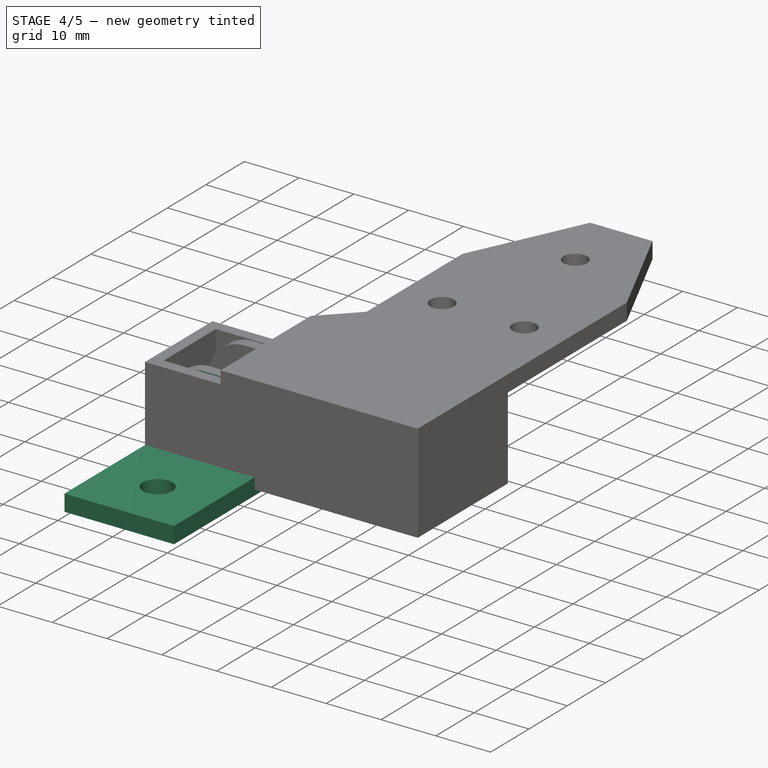
[diagram: stage 4 of 5 — iso view after this stage's code; geometry added in this stage tinted green]
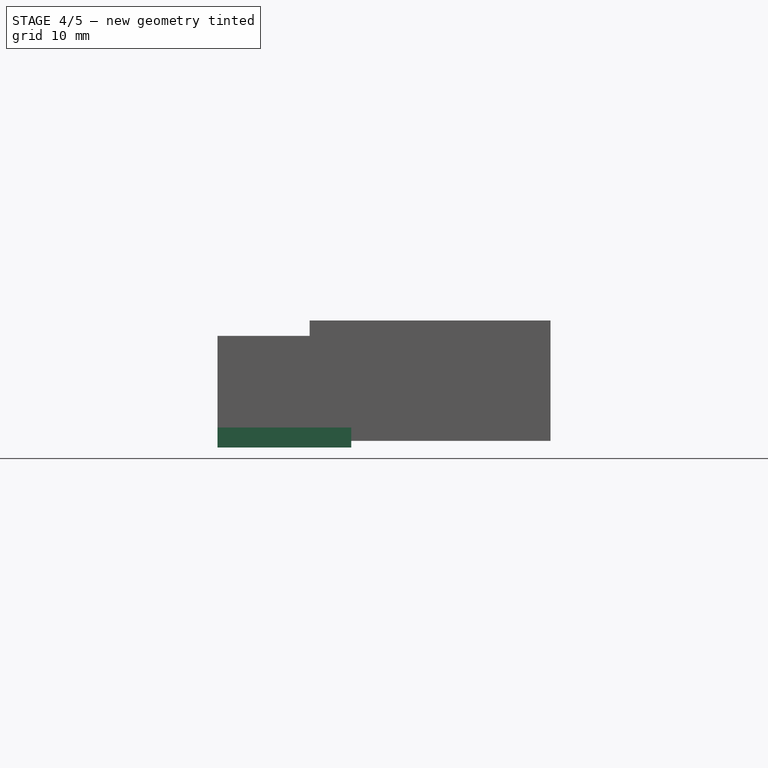
[diagram: stage 4 of 5 — front view after this stage's code; geometry added in this stage tinted green]
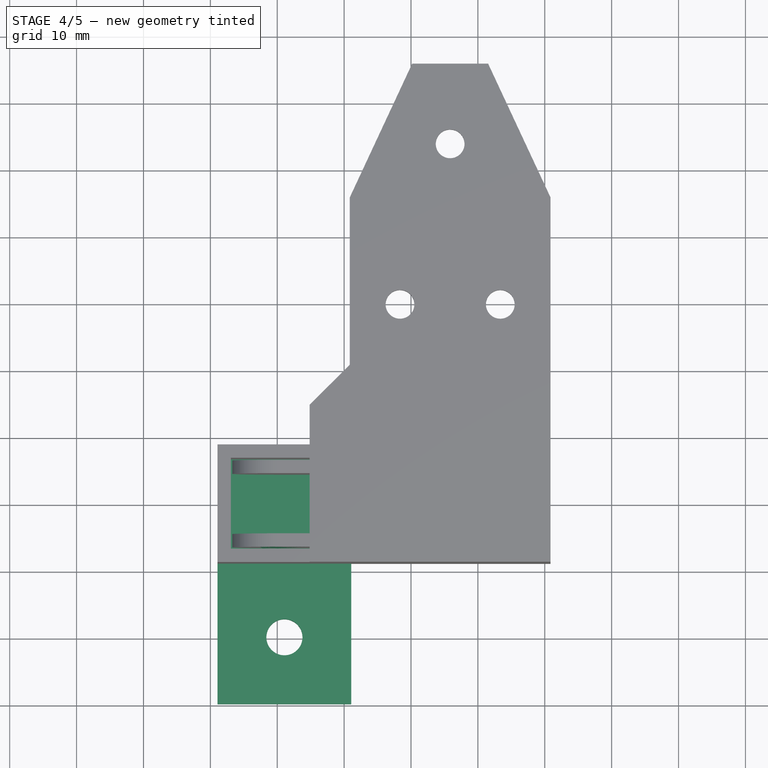
[diagram: stage 4 of 5 — top view after this stage's code; geometry added in this stage tinted green]
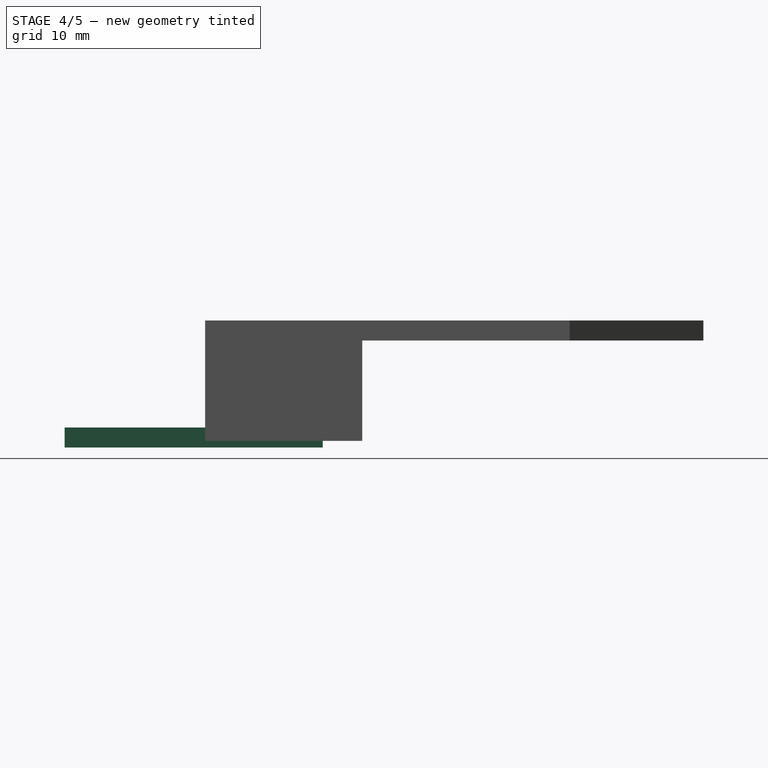
[diagram: stage 4 of 5 — right view after this stage's code; geometry added in this stage tinted green]
FEATURE [Spreadsheet::Sheet] Spreadsheet  label="params"
  cells = A1=Cross section dimensions; E1=Last Try; A2=Inner width; B2(iw)=9; E2=16; A3=Inner height; B3(ih)=9.4; E3=9.4; A4=wall thickness; B4(wt)=2; C4= min. 2.0 mm; E4=2.4; A5=gap between parts; B5(gap)=0.3; E5=0.3; A7=Dimensions of the chain-arch; A8=pitch; B8(pitch)=16; E8=16; A9=No. of segments in arc; B9(nr_segments)=5; C9= (4 segments with a 45° angle between the segments); E9=6; A12=Results; A13=bending diameter =; B13==pitch / tan(180 / (2 * nr_segments)); A14=installation height = ; B14==B13 + ih + 2 * (wt + gap)
FEATURE [Sketcher::SketchObject] Sketch  label="Mstr-Sketch-Side"
  FullyConstrained = false
  MapMode = 5
  Placement = pos=(0,0,0) rot=(1,0,0;1.5708rad)
  expr: Constraints[40] = 180 / <<params>>.nr_segments
  expr: Constraints[29] = <<params>>.ih / 2 - <<params>>.gap / 2
  expr: Constraints[19] = <<params>>.ih / 2 + <<params>>.gap / 2
  expr: Constraints[10] = <<params>>.ih / 2 + <<params>>.wt + <<params>>.gap
  expr: Constraints[5] = <<params>>.ih / 2 + <<params>>.wt + <<params>>.gap
  expr: Constraints[2] = <<params>>.pitch
  expr: Constraints[36] = <<params>>.ih / 2 + <<params>>.wt - <<params>>.gap / 2
  expr: Constraints[9] = <<params>>.ih / 2 + <<params>>.wt
  sketch-geometry (17):
    g0: ArcOfCircle CenterX=0 CenterY=0 CenterZ=0 NormalX=0 NormalY=0 NormalZ=1 AngleXU=0 Radius=6.7 StartAngle=1.5708 EndAngle=3.14159
    g1: ArcOfCircle CenterX=16 CenterY=0 CenterZ=0 NormalX=0 NormalY=0 NormalZ=1 AngleXU=0 Radius=7 StartAngle=1.86462 EndAngle=3.93164
    g2: Circle CenterX=0 CenterY=0 CenterZ=0 NormalX=0 NormalY=0 NormalZ=1 AngleXU=0 Radius=3.5
    g3: LineSegment StartX=1.9e-15 StartY=6.7 StartZ=0 EndX=13.9727 EndY=6.7 EndZ=0
    g4: LineSegment StartX=16.7563 StartY=6.7 StartZ=0 EndX=19.681 EndY=2.67442 EndZ=0
    g5: LineSegment StartX=20.55 StartY=0 StartZ=0 EndX=20.55 EndY=-7 EndZ=0
    g6: LineSegment StartX=-1.94043 StartY=-6.41286 StartZ=0 EndX=0 EndY=-7 EndZ=0
    g7: LineSegment StartX=0 StartY=-7 StartZ=0 EndX=11.0733 EndY=-7 EndZ=0
    g8: LineSegment StartX=13.9727 StartY=6.7 StartZ=0 EndX=16.7563 EndY=6.7 EndZ=0
    g9: LineSegment StartX=4.85 StartY=6.7 StartZ=0 EndX=4.85 EndY=-7 EndZ=0
    g10: LineSegment StartX=11.0733 StartY=-4.97269 StartZ=0 EndX=11.0733 EndY=-7 EndZ=0
    g11: LineSegment StartX=11.0733 StartY=-7 StartZ=0 EndX=20.55 EndY=-7 EndZ=0
    g12: ArcOfCircle CenterX=16 CenterY=0 CenterZ=0 NormalX=0 NormalY=0 NormalZ=1 AngleXU=0 Radius=4.55 StartAngle=0 EndAngle=0.628319
    g13: Circle CenterX=16 CenterY=0 CenterZ=0 NormalX=0 NormalY=0 NormalZ=1 AngleXU=0 Radius=7
    g14: Circle CenterX=16 CenterY=0 CenterZ=0 NormalX=0 NormalY=0 NormalZ=1 AngleXU=0 Radius=3.275
    g15: LineSegment StartX=20.55 StartY=0 StartZ=0 EndX=20.55 EndY=6.7 EndZ=0
    g16: ArcOfCircle CenterX=0 CenterY=0 CenterZ=0 NormalX=0 NormalY=0 NormalZ=1 AngleXU=0 Radius=6.7 StartAngle=3.14159 EndAngle=4.41856
  constraints (46):
    c: PointOnObject(g1,g-1)
    c: Coincident(g0,g-1)
    c: DistanceX(g0,g1) = 16
    c: Coincident(g2,g0)
    c: Horizontal(g3)
    c: Diameter(g2) = 7
    c: Vertical(g5)
    c: Coincident(g7,g6)
    c: Horizontal(g7)
    c: DistanceY(g0,g0) = 6.7
    c: Radius(g1) = 7
    c: Tangent(g1,g7)
    c: Tangent(g0,g6)
    c: Coincident(g1,g3)
    c: Coincident(g8,g1)
    c: Horizontal(g8)
    c: Coincident(g4,g8)
    c: PointOnObject(g9,g3)
    c: Vertical(g9)
    c: DistanceX(g0,g9) = 4.85
    c: Vertical(g10)
    c: Coincident(g10,g7)
    c: Coincident(g10,g1)
    c: Coincident(g11,g7)
    c: Coincident(g11,g5)
    c: Horizontal(g11)
    c: Equal(g6,g10)
    c: Tangent(g4,g12) = 1.5708
    c: Tangent(g5,g12) = 1.5708
    c: Radius(g12) = 4.55
    c: Coincident(g12,g1)
    c: PointOnObject(g6,g-2)
    c: PointOnObject(g9,g7)
    c: Coincident(g13,g1)
    c: PointOnObject(g1,g13)
    c: Coincident(g14,g1)
    c: Diameter(g14) = 6.55
    c: Coincident(g15,g5)
    c: Vertical(g15)
    c: PointOnObject(g15,g8)
    c: Angle(g15,g4) = 0.628319
    c: Coincident(g16,g0)
    c: Coincident(g16,g6)
    c: Coincident(g16,g0)
    c: PointOnObject(g0,g-1)
    c: Tangent(g3,g0) = 1.5708
FEATURE [Sketcher::SketchObject] Sketch001  label="Mstr-Sketch-Front"
  ExternalGeometry = -> [Sketch]
  FullyConstrained = false
  MapMode = 5
  Placement = pos=(0,0,0) rot=(0.57735,0.57735,0.57735;2.0944rad)
  expr: Constraints[41] = <<params>>.gap
  expr: Constraints[17] = <<params>>.ih
  expr: Constraints[40] = <<params>>.wt
  expr: Constraints[29] = 2 * <<params>>.gap + 4 * <<params>>.wt + <<params>>.iw
  expr: Constraints[16] = <<params>>.iw
  sketch-geometry (16):
    g0: LineSegment StartX=-3.5 StartY=4.7 StartZ=0 EndX=3.5 EndY=4.7 EndZ=0
    g1: LineSegment StartX=4.5 StartY=3.7 StartZ=0 EndX=4.5 EndY=-3.7 EndZ=0
    g2: LineSegment StartX=3.5 StartY=-4.7 StartZ=0 EndX=-3.5 EndY=-4.7 EndZ=0
    g3: LineSegment StartX=-4.5 StartY=-3.7 StartZ=0 EndX=-4.5 EndY=3.7 EndZ=0
    g4: ArcOfCircle CenterX=-3.5 CenterY=3.7 CenterZ=0 NormalX=0 NormalY=0 NormalZ=1 AngleXU=0 Radius=1 StartAngle=1.5708 EndAngle=3.14159
    g5: ArcOfCircle CenterX=3.5 CenterY=3.7 CenterZ=0 NormalX=0 NormalY=0 NormalZ=1 AngleXU=0 Radius=1 StartAngle=0 EndAngle=1.5708
    g6: ArcOfCircle CenterX=3.5 CenterY=-3.7 CenterZ=0 NormalX=0 NormalY=0 NormalZ=1 AngleXU=0 Radius=1 StartAngle=4.71239 EndAngle=6.28319
    g7: ArcOfCircle CenterX=-3.5 CenterY=-3.7 CenterZ=0 NormalX=0 NormalY=0 NormalZ=1 AngleXU=0 Radius=1 StartAngle=3.14159 EndAngle=4.71239
    g8: LineSegment StartX=-8.8 StartY=6.7 StartZ=0 EndX=8.8 EndY=6.7 EndZ=0
    g9: LineSegment StartX=8.8 StartY=6.7 StartZ=0 EndX=8.8 EndY=-7 EndZ=0
    g10: LineSegment StartX=8.8 StartY=-7 StartZ=0 EndX=-8.8 EndY=-7 EndZ=0
    g11: LineSegment StartX=-8.8 StartY=-7 StartZ=0 EndX=-8.8 EndY=6.7 EndZ=0
    g12: LineSegment StartX=-6.5 StartY=6.7 StartZ=0 EndX=-6.5 EndY=-7 EndZ=0
    g13: LineSegment StartX=6.5 StartY=6.7 StartZ=0 EndX=6.5 EndY=-7 EndZ=0
    g14: LineSegment StartX=-6.8 StartY=6.7 StartZ=0 EndX=-6.8 EndY=-7 EndZ=0
    g15: LineSegment StartX=6.8 StartY=6.7 StartZ=0 EndX=6.8 EndY=-7 EndZ=0
  constraints (44):
    c: Horizontal(g0)
    c: Horizontal(g2)
    c: Vertical(g1)
    c: Vertical(g3)
    c: Tangent(g3,g4) = 1.5708
    c: Tangent(g0,g4) = 1.5708
    c: Tangent(g0,g5) = 1.5708
    c: Tangent(g1,g5) = 1.5708
    c: Tangent(g1,g6) = 1.5708
    c: Tangent(g2,g6) = 1.5708
    c: Tangent(g3,g7) = 1.5708
    c: Tangent(g2,g7) = 1.5708
    c: Equal(g4,g5)
    c: Equal(g5,g6)
    c: Equal(g6,g7)
    c: Symmetric(g5,g7,g-1)
    c: DistanceX(g3,g1) = 9
    c: DistanceY(g2,g0) = 9.4
    c: Radius(g6) = 1
    c: Coincident(g8,g9)
    c: Coincident(g9,g10)
    c: Coincident(g10,g11)
    c: Coincident(g11,g8)
    c: Horizontal(g8)
    c: Vertical(g9)
    c: Vertical(g11)
    c: PointOnObject(g-4,g8)
    c: PointOnObject(g-3,g10)
    c: Symmetric(g10,g9,g-2)
    c: DistanceX(g10,g10) = 17.6
    c: PointOnObject(g12,g10)
    c: Vertical(g12)
    c: Vertical(g13)
    c: PointOnObject(g13,g8)
    c: PointOnObject(g12,g8)
    c: PointOnObject(g14,g8)
    c: PointOnObject(g14,g10)
    c: Vertical(g14)
    c: PointOnObject(g15,g8)
    c: Vertical(g15)
    c: DistanceX(g15,g8) = 2
    c: DistanceX(g13,g15) = 0.3
    c: Symmetric(g12,g13,g-2)
    c: Symmetric(g14,g15,g-2)
FEATURE [PartDesign::ShapeBinder] ShapeBinder
  Placement = pos=(0,0,0) rot=(1,0,0;1.5708rad)
  Support = -> [Sketch]
  TraceSupport = false
FEATURE [PartDesign::ShapeBinder] ShapeBinder001
  Placement = pos=(0,0,0) rot=(0.57735,0.57735,0.57735;2.0944rad)
  Support = -> [Sketch001]
  TraceSupport = false
FEATURE [Sketcher::SketchObject] Sketch002
  ExternalGeometry = -> [ShapeBinder,ShapeBinder001]
  FullyConstrained = false
  MapMode = 5
  Support = -> [XY_Plane]
  expr: Constraints[37] = <<params>>.wt
  sketch-geometry (13):
    g0: LineSegment StartX=-6.7 StartY=6.5 StartZ=0 EndX=-6.7 EndY=4.5 EndZ=0
    g1: LineSegment StartX=-6.7 StartY=4.5 StartZ=0 EndX=4.85 EndY=4.5 EndZ=0
    g2: LineSegment StartX=4.85 StartY=4.5 StartZ=0 EndX=4.85 EndY=-4.5 EndZ=0
    g3: LineSegment StartX=4.85 StartY=-4.5 StartZ=0 EndX=-6.7 EndY=-4.5 EndZ=0
    g4: LineSegment StartX=-6.7 StartY=-4.5 StartZ=0 EndX=-6.7 EndY=-6.5 EndZ=0
    g5: LineSegment StartX=-6.7 StartY=-6.5 StartZ=0 EndX=4.85 EndY=-6.5 EndZ=0
    g6: LineSegment StartX=4.85 StartY=-6.5 StartZ=0 EndX=4.85 EndY=-8.8 EndZ=0
    g7: LineSegment StartX=4.85 StartY=-8.8 StartZ=0 EndX=20.55 EndY=-8.8 EndZ=0
    g8: LineSegment StartX=20.55 StartY=-8.8 StartZ=0 EndX=20.55 EndY=8.8 EndZ=0
    g9: LineSegment StartX=20.55 StartY=8.8 StartZ=0 EndX=4.85 EndY=8.8 EndZ=0
    g10: LineSegment StartX=4.85 StartY=8.8 StartZ=0 EndX=4.85 EndY=6.5 EndZ=0
    g11: LineSegment StartX=4.85 StartY=6.5 StartZ=0 EndX=-6.7 EndY=6.5 EndZ=0
    g12: LineSegment StartX=-6.7 StartY=4.5 StartZ=0 EndX=-6.7 EndY=-4.5 EndZ=0
  constraints (38):
    c: Vertical(g0)
    c: Coincident(g0,g1)
    c: Horizontal(g1)
    c: Coincident(g1,g2)
    c: Vertical(g2)
    c: Coincident(g2,g3)
    c: Horizontal(g3)
    c: Coincident(g3,g4)
    c: Vertical(g4)
    c: Coincident(g4,g5)
    c: Horizontal(g5)
    c: Coincident(g5,g6)
    c: Vertical(g6)
    c: Coincident(g6,g7)
    c: Horizontal(g7)
    c: Coincident(g7,g8)
    c: Vertical(g8)
    c: Coincident(g8,g9)
    c: Horizontal(g9)
    c: Coincident(g9,g10)
    c: Vertical(g10)
    c: Coincident(g10,g11)
    c: Coincident(g11,g0)
    c: Horizontal(g11)
    c: PointOnObject(g-5,g8)
    c: PointOnObject(g-4,g2)
    c: Coincident(g12,g0)
    c: Coincident(g12,g3)
    c: PointOnObject(g-3,g12)
    c: Equal(g5,g3)
    c: Equal(g3,g1)
    c: Equal(g1,g11)
    c: PointOnObject(g-9,g1)
    c: PointOnObject(g-8,g3)
    c: Horizontal(g-6,g9)
    c: Horizontal(g-7,g6)
    c: Equal(g4,g0)
    c: DistanceY(g4,g4) = 2
FEATURE [PartDesign::Pad] Pad
  AllowMultiFace = false
  Direction = (1,1,1)
  Length = 14
  Length2 = 100
  Midplane = true
  Profile = -> Sketch002
  Type = 0
  expr: Length = <<params>>.ih + 2 * (<<params>>.wt + <<params>>.gap)
FEATURE [Sketcher::SketchObject] Sketch003
  ExternalGeometry = -> [ShapeBinder,Pad]
  FullyConstrained = false
  MapMode = 5
  Placement = pos=(0,0,0) rot=(1,0,0;1.5708rad)
  Support = -> [XZ_Plane]
  sketch-geometry (15):
    g0: ArcOfCircle CenterX=0 CenterY=0 CenterZ=0 NormalX=0 NormalY=0 NormalZ=1 AngleXU=0 Radius=6.7 StartAngle=1.5708 EndAngle=4.41856
    g1: ArcOfCircle CenterX=16 CenterY=0 CenterZ=0 NormalX=0 NormalY=0 NormalZ=1 AngleXU=0 Radius=4.55 StartAngle=6.28319 EndAngle=6.9115
    g2: LineSegment StartX=20.55 StartY=-7.9702e-08 StartZ=0 EndX=20.55 EndY=-7 EndZ=0
    g3: LineSegment StartX=20.55 StartY=-7 StartZ=0 EndX=5.43624e-06 EndY=-7 EndZ=0
    g4: LineSegment StartX=5.43624e-06 StartY=-7 StartZ=0 EndX=-1.94043 EndY=-6.41286 EndZ=0
    g5: LineSegment StartX=-2.0379e-07 StartY=6.7 StartZ=0 EndX=16.7563 EndY=6.7 EndZ=0
    g6: LineSegment StartX=16.7563 StartY=6.7 StartZ=0 EndX=19.681 EndY=2.67442 EndZ=0
    g7: LineSegment StartX=-8.7 StartY=0 StartZ=0 EndX=-6.7 EndY=0 EndZ=0
    g8: LineSegment StartX=-8.7 StartY=8.7 StartZ=0 EndX=22.55 EndY=8.7 EndZ=0
    g9: LineSegment StartX=22.55 StartY=8.7 StartZ=0 EndX=22.55 EndY=-9 EndZ=0
    g10: LineSegment StartX=22.55 StartY=-9 StartZ=0 EndX=-8.7 EndY=-9 EndZ=0
    g11: LineSegment StartX=-8.7 StartY=-9 StartZ=0 EndX=-8.7 EndY=8.7 EndZ=0
    g12: LineSegment StartX=-2.0379e-07 StartY=6.7 StartZ=0 EndX=-2.0379e-07 EndY=8.7 EndZ=0
    g13: LineSegment StartX=5.43624e-06 StartY=-7 StartZ=0 EndX=5.43624e-06 EndY=-9 EndZ=0
    g14: LineSegment StartX=20.55 StartY=-7.9702e-08 StartZ=0 EndX=22.55 EndY=-7.9702e-08 EndZ=0
  constraints (42):
    c: Coincident(g0,g-1)
    c: Coincident(g1,g-6)
    c: Coincident(g1,g-5)
    c: Coincident(g2,g1)
    c: Coincident(g2,g-7)
    c: Vertical(g2)
    c: Coincident(g3,g2)
    c: Horizontal(g3)
    c: Coincident(g4,g3)
    c: Coincident(g4,g-3)
    c: Coincident(g5,g0)
    c: Coincident(g5,g-4)
    c: Horizontal(g5)
    c: Coincident(g6,g5)
    c: Coincident(g6,g1)
    c: Coincident(g4,g0)
    c: Tangent(g4,g0)
    c: PointOnObject(g7,g-1)
    c: PointOnObject(g7,g0)
    c: Coincident(g8,g9)
    c: Coincident(g9,g10)
    c: Coincident(g10,g11)
    c: Coincident(g11,g8)
    c: Horizontal(g8)
    c: Horizontal(g10)
    c: Vertical(g9)
    c: Vertical(g11)
    c: PointOnObject(g7,g11)
    c: Horizontal(g7)
    c: Coincident(g12,g0)
    c: PointOnObject(g12,g8)
    c: Coincident(g13,g3)
    c: PointOnObject(g13,g10)
    c: Vertical(g13)
    c: Coincident(g14,g1)
    c: PointOnObject(g14,g9)
    c: Horizontal(g14)
    c: Vertical(g12)
    c: Equal(g7,g12)
    c: Equal(g12,g14)
    c: Equal(g14,g13)
    c: DistanceX(g7,g7) = 2
FEATURE [PartDesign::Pocket] Pocket
  AllowMultiFace = false
  BaseFeature = -> Pad
  Length = 5
  Length2 = 100
  Midplane = true
  Profile = -> Sketch003
  Type = 1
FEATURE [Sketcher::SketchObject] Sketch004
  ExternalGeometry = -> [ShapeBinder]
  FullyConstrained = false
  MapMode = 5
  Placement = pos=(0,0,0) rot=(1,0,0;1.5708rad)
  Support = -> [XZ_Plane]
  sketch-geometry (8):
    g0: LineSegment StartX=11.8855 StartY=5.66312 StartZ=0 EndX=13.3126 EndY=6.7 EndZ=0
    g1: LineSegment StartX=20.55 StartY=1.61003e-05 StartZ=0 EndX=20.55 EndY=-7 EndZ=0
    g2: LineSegment StartX=20.55 StartY=-7 StartZ=0 EndX=11.0733 EndY=-7 EndZ=0
    g3: LineSegment StartX=11.0733 StartY=-7 StartZ=0 EndX=11.0733 EndY=-4.97269 EndZ=0
    g4: ArcOfCircle CenterX=16 CenterY=0 CenterZ=0 NormalX=0 NormalY=0 NormalZ=1 AngleXU=0 Radius=7 StartAngle=2.19911 EndAngle=3.93164
    g5: ArcOfCircle CenterX=16 CenterY=0 CenterZ=0 NormalX=0 NormalY=0 NormalZ=1 AngleXU=0 Radius=4.55 StartAngle=3.53852e-06 EndAngle=0.628319
    g6: LineSegment StartX=13.3126 StartY=6.7 StartZ=0 EndX=16.7563 EndY=6.7 EndZ=0
    g7: LineSegment StartX=16.7563 StartY=6.7 StartZ=0 EndX=19.681 EndY=2.67442 EndZ=0
  constraints (20):
    c: Vertical(g1)
    c: Coincident(g1,g2)
    c: Horizontal(g2)
    c: Coincident(g2,g3)
    c: Coincident(g4,g0)
    c: Coincident(g3,g4)
    c: Coincident(g3,g-5)
    c: Vertical(g3)
    c: Coincident(g1,g-4)
    c: Coincident(g4,g-3)
    c: Tangent(g0,g4)
    c: Coincident(g5,g4)
    c: Coincident(g5,g1)
    c: Coincident(g6,g0)
    c: Coincident(g6,g-6)
    c: Horizontal(g6)
    c: Coincident(g7,g6)
    c: Coincident(g7,g-7)
    c: Coincident(g5,g7)
    c: Perpendicular(g0,g7)
FEATURE [PartDesign::Pocket] Pocket001
  AllowMultiFace = false
  BaseFeature = -> Pocket
  Length = 13.6
  Length2 = 100
  Midplane = true
  Profile = -> Sketch004
  Type = 0
  expr: Length = <<params>>.iw + 2 * (<<params>>.wt + <<params>>.gap)
FEATURE [Sketcher::SketchObject] Sketch005
  ExternalGeometry = -> [ShapeBinder001]
  FullyConstrained = false
  MapMode = 5
  Placement = pos=(0,0,0) rot=(0.57735,0.57735,0.57735;2.0944rad)
  Support = -> [YZ_Plane]
  sketch-geometry (8):
    g0: LineSegment StartX=-3.5 StartY=4.7 StartZ=0 EndX=3.5 EndY=4.7 EndZ=0
    g1: LineSegment StartX=4.5 StartY=3.7 StartZ=0 EndX=4.5 EndY=-3.7 EndZ=0
    g2: LineSegment StartX=3.5 StartY=-4.7 StartZ=0 EndX=-3.5 EndY=-4.7 EndZ=0
    g3: LineSegment StartX=-4.5 StartY=-3.7 StartZ=0 EndX=-4.5 EndY=3.7 EndZ=0
    g4: ArcOfCircle CenterX=-3.5 CenterY=3.7 CenterZ=0 NormalX=0 NormalY=0 NormalZ=1 AngleXU=0 Radius=1 StartAngle=1.5708 EndAngle=3.14159
    g5: ArcOfCircle CenterX=3.5 CenterY=3.7 CenterZ=0 NormalX=0 NormalY=0 NormalZ=1 AngleXU=0 Radius=1 StartAngle=0 EndAngle=1.5708
    g6: ArcOfCircle CenterX=3.5 CenterY=-3.7 CenterZ=0 NormalX=0 NormalY=0 NormalZ=1 AngleXU=0 Radius=1 StartAngle=4.71239 EndAngle=6.28319
    g7: ArcOfCircle CenterX=-3.5 CenterY=-3.7 CenterZ=0 NormalX=0 NormalY=0 NormalZ=1 AngleXU=0 Radius=1 StartAngle=3.14159 EndAngle=4.71239
  constraints (16):
    c: Horizontal(g0)
    c: Horizontal(g2)
    c: Vertical(g1)
    c: Tangent(g3,g4) = 1.5708
    c: Tangent(g0,g4) = 1.5708
    c: Tangent(g0,g5) = 1.5708
    c: Tangent(g1,g5) = 1.5708
    c: Tangent(g1,g6) = 1.5708
    c: Tangent(g2,g6) = 1.5708
    c: Tangent(g2,g7) = 1.5708
    c: Tangent(g3,g7) = 1.5708
    c: Coincident(g7,g-6)
    c: Coincident(g6,g-5)
    c: Coincident(g5,g-4)
    c: Coincident(g4,g-3)
    c: Equal(g-3,g4)
FEATURE [PartDesign::Pocket] Pocket002
  AllowMultiFace = false
  BaseFeature = -> Pocket001
  Length = 5
  Length2 = 100
  Profile = -> Sketch005
  Reversed = true
  Type = 1
FEATURE [Sketcher::SketchObject] Sketch017
  AttachmentOffset = pos=(0,0,-7) rot=(0,0,1;0rad)
  ExternalGeometry = -> [ShapeBinder003,ShapeBinder002]
  FullyConstrained = false
  MapMode = 5
  Placement = pos=(0,0,-7) rot=(0,0,1;0rad)
  Support = -> [XY_Plane001]
  expr: .AttachmentOffset.Base.z = -(<<params>>.ih / 2 + <<params>>.wt + <<params>>.gap)
  sketch-geometry (7):
    g0: LineSegment StartX=-8.9267 StartY=8.8 StartZ=0 EndX=11.0733 EndY=8.8 EndZ=0
    g1: LineSegment StartX=11.0733 StartY=8.8 StartZ=0 EndX=11.0733 EndY=-29.8 EndZ=0
    g2: LineSegment StartX=11.0733 StartY=-29.8 StartZ=0 EndX=-8.9267 EndY=-29.8 EndZ=0
    g3: LineSegment StartX=-8.9267 StartY=-29.8 StartZ=0 EndX=-8.9267 EndY=8.8 EndZ=0
    g4: Circle CenterX=1.0733 CenterY=-19.8 CenterZ=0 NormalX=0 NormalY=0 NormalZ=1 AngleXU=0 Radius=2.7
    g5: LineSegment StartX=-8.9267 StartY=-8.8 StartZ=0 EndX=11.0733 EndY=-8.8 EndZ=0
    g6: LineSegment StartX=-8.9267 StartY=-9.8 StartZ=0 EndX=11.0733 EndY=-9.8 EndZ=0
  constraints (22):
    c: Coincident(g0,g1)
    c: Coincident(g1,g2)
    c: Coincident(g2,g3)
    c: Coincident(g3,g0)
    c: Horizontal(g0)
    c: Horizontal(g2)
    c: Vertical(g1)
    c: Vertical(g3)
    c: PointOnObject(g-5,g1)
    c: PointOnObject(g-4,g0)
    c: DistanceX(g0,g0) = 20
    c: Diameter(g4) = 5.4
    c: PointOnObject(g5,g3)
    c: PointOnObject(g5,g1)
    c: Horizontal(g5)
    c: PointOnObject(g-3,g5)
    c: PointOnObject(g6,g3)
    c: PointOnObject(g6,g1)
    c: Horizontal(g6)
    c: DistanceY(g6,g5) = 1
    c: DistanceY(g2,g6) = 20
    c: Symmetric(g6,g2,g4)
FEATURE [PartDesign::Pad] Pad002
  AllowMultiFace = false
  BaseFeature = -> Pocket009
  Direction = (1,1,1)
  Length = 3
  Length2 = 100
  Profile = -> Sketch017
  Reversed = true
  Type = 0
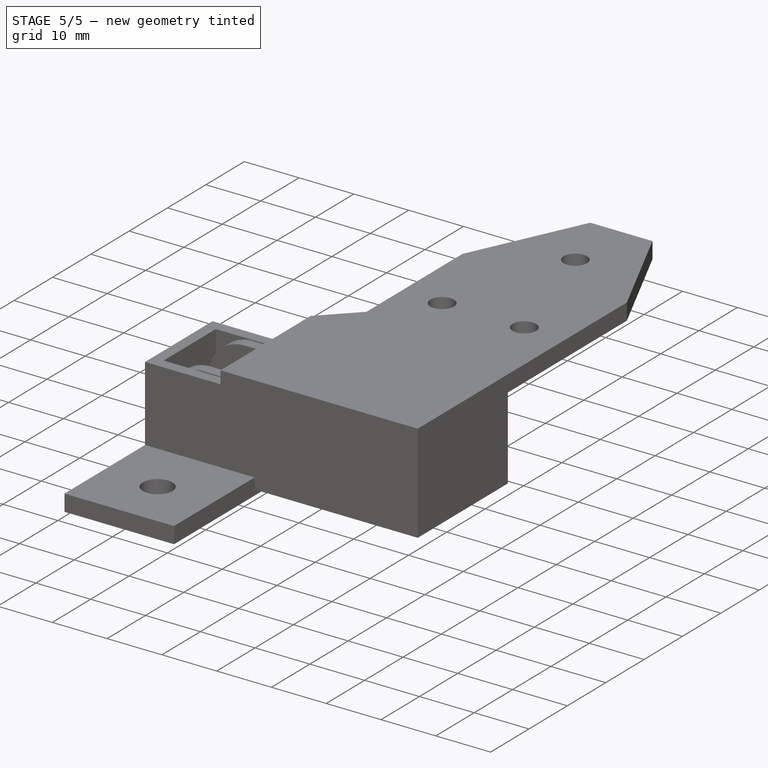
[diagram: stage 5 of 5 — iso view after this stage's code; geometry added in this stage tinted green]
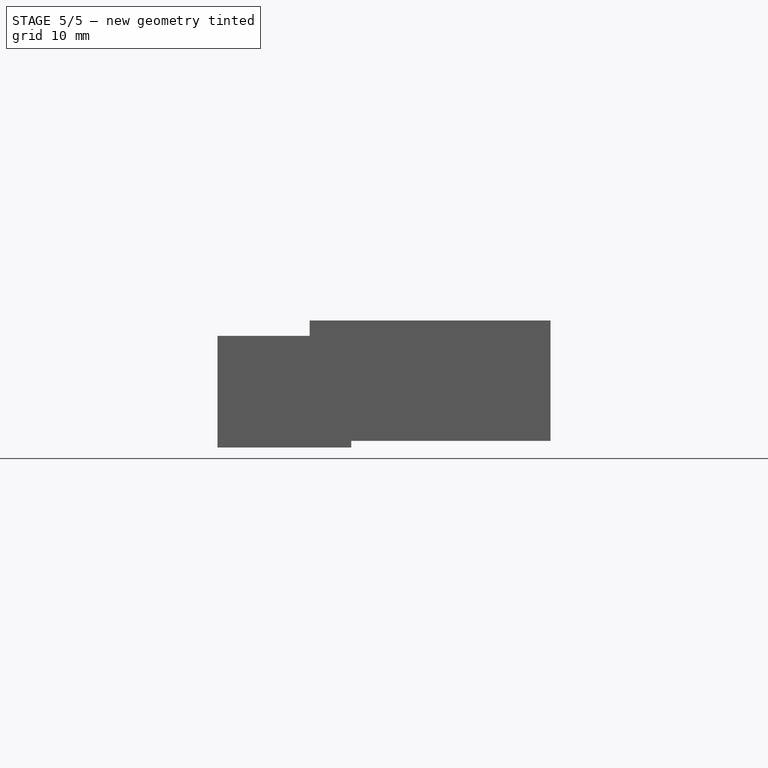
[diagram: stage 5 of 5 — front view after this stage's code; geometry added in this stage tinted green]
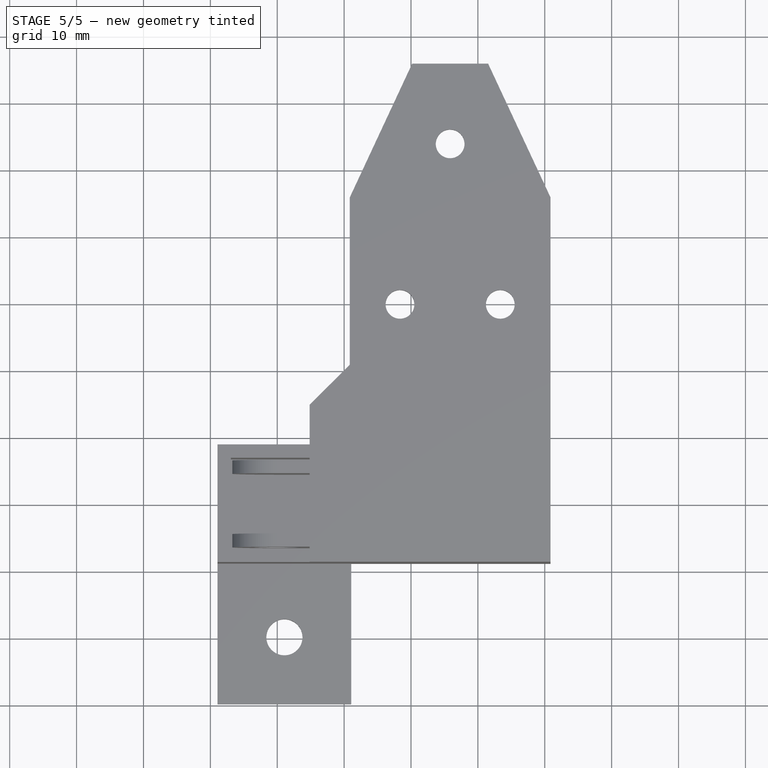
[diagram: stage 5 of 5 — top view after this stage's code; geometry added in this stage tinted green]
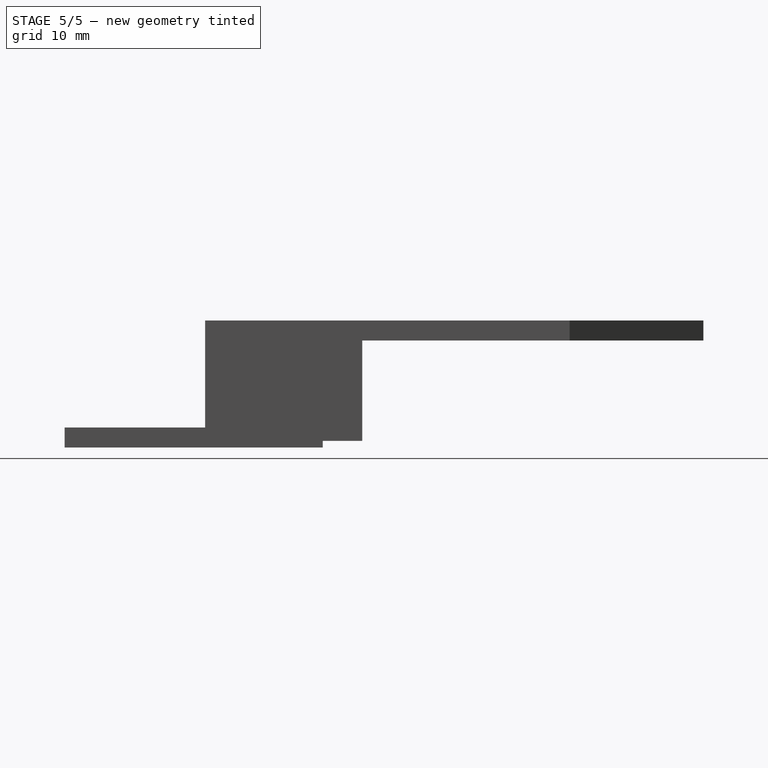
[diagram: stage 5 of 5 — right view after this stage's code; geometry added in this stage tinted green]
FEATURE [Sketcher::SketchObject] Sketch006
  ExternalGeometry = -> [ShapeBinder]
  FullyConstrained = false
  MapMode = 5
  Support = -> [XY_Plane]
  expr: Constraints[8] = <<params>>.iw
  sketch-geometry (4):
    g0: LineSegment StartX=11.0733 StartY=4.5 StartZ=0 EndX=16.7563 EndY=4.5 EndZ=0
    g1: LineSegment StartX=16.7563 StartY=4.5 StartZ=0 EndX=16.7563 EndY=-4.5 EndZ=0
    g2: LineSegment StartX=16.7563 StartY=-4.5 StartZ=0 EndX=11.0733 EndY=-4.5 EndZ=0
    g3: LineSegment StartX=11.0733 StartY=-4.5 StartZ=0 EndX=11.0733 EndY=4.5 EndZ=0
  constraints (11):
    c: Coincident(g0,g1)
    c: Coincident(g1,g2)
    c: Coincident(g2,g3)
    c: Coincident(g3,g0)
    c: Horizontal(g0)
    c: Horizontal(g2)
    c: Vertical(g3)
    c: PointOnObject(g-3,g3)
    c: DistanceY(g3,g3) = 9
    c: PointOnObject(g-4,g1)
    c: Symmetric(g1,g0,g-1)
FEATURE [PartDesign::Pocket] Pocket003
  AllowMultiFace = false
  BaseFeature = -> Pocket002
  Length = 5
  Length2 = 100
  Profile = -> Sketch006
  Reversed = true
  Type = 1
FEATURE [Sketcher::SketchObject] Sketch007
  ExternalGeometry = -> [ShapeBinder]
  FullyConstrained = false
  MapMode = 5
  Support = -> [XY_Plane]
  expr: Constraints[10] = <<params>>.wt * 0.75
  expr: Constraints[8] = <<params>>.pitch
  expr: Constraints[6] = <<params>>.iw / 2 + <<params>>.wt + <<params>>.gap
  sketch-geometry (5):
    g0: LineSegment StartX=16 StartY=6.8 StartZ=0 EndX=19.275 EndY=6.8 EndZ=0
    g1: LineSegment StartX=19.275 StartY=6.8 StartZ=0 EndX=18.729 EndY=5.3 EndZ=0
    g2: LineSegment StartX=18.729 StartY=5.3 StartZ=0 EndX=16 EndY=5.3 EndZ=0
    g3: LineSegment StartX=16 StartY=5.3 StartZ=0 EndX=16 EndY=6.8 EndZ=0
    g4: LineSegment StartX=19.275 StartY=0 StartZ=0 EndX=19.275 EndY=6.8 EndZ=0
  constraints (14):
    c: Horizontal(g0)
    c: Coincident(g0,g1)
    c: Coincident(g1,g2)
    c: Horizontal(g2)
    c: Coincident(g2,g3)
    c: Vertical(g3)
    c: DistanceY(g-1,g0) = 6.8
    c: Coincident(g3,g0)
    c: DistanceX(g-1,g2) = 16
    c: Angle(g0,g1) = 1.22173
    c: DistanceY(g3,g3) = 1.5
    c: Coincident(g4,g-3)
    c: Vertical(g4)
    c: Coincident(g0,g4)
FEATURE [PartDesign::Revolution] Revolution
  AllowMultiFace = false
  Angle = 360
  Axis = (0,1,0)
  Base = (16,5.3,0)
  BaseFeature = -> Pocket003
  Profile = -> Sketch007
  ReferenceAxis = -> Sketch007 [Edge4]
  Reversed = true
FEATURE [PartDesign::Mirrored] Mirrored
  BaseFeature = -> Revolution
  MirrorPlane = -> XZ_Plane
  Originals = -> [Revolution]
FEATURE [Sketcher::SketchObject] Sketch008
  ExternalGeometry = -> [ShapeBinder]
  FullyConstrained = false
  MapMode = 5
  Support = -> [XY_Plane]
  expr: Constraints[13] = <<params>>.wt * 0.2
  expr: Constraints[7] = <<params>>.wt * 0.75
  expr: Constraints[9] = <<params>>.iw / 2 + <<params>>.wt
  sketch-geometry (6):
    g0: LineSegment StartX=0 StartY=6.5 StartZ=0 EndX=3.5 EndY=6.5 EndZ=0
    g1: LineSegment StartX=3.5 StartY=6.5 StartZ=0 EndX=3.09963 EndY=5.4 EndZ=0
    g2: LineSegment StartX=3.09963 StartY=5 StartZ=0 EndX=0 EndY=5 EndZ=0
    g3: LineSegment StartX=0 StartY=5 StartZ=0 EndX=0 EndY=6.5 EndZ=0
    g4: LineSegment StartX=3.09963 StartY=5.4 StartZ=0 EndX=3.09963 EndY=5 EndZ=0
    g5: LineSegment StartX=3.5 StartY=0 StartZ=0 EndX=3.5 EndY=6.5 EndZ=0
  constraints (17):
    c: PointOnObject(g0,g-2)
    c: Horizontal(g0)
    c: Coincident(g0,g1)
    c: PointOnObject(g2,g-2)
    c: Horizontal(g2)
    c: Coincident(g2,g3)
    c: Coincident(g3,g0)
    c: DistanceY(g3,g3) = 1.5
    c: Angle(g0,g1) = 1.22173
    c: DistanceY(g-1,g0) = 6.5
    c: Vertical(g4)
    c: Coincident(g1,g4)
    c: Coincident(g2,g4)
    c: DistanceY(g4,g4) = 0.4
    c: Coincident(g5,g-3)
    c: Vertical(g5)
    c: Coincident(g5,g0)
FEATURE [PartDesign::Groove] Groove
  AllowMultiFace = false
  Angle = 360
  Axis = (0,1,0)
  Base = (0,5,0)
  BaseFeature = -> Mirrored
  Profile = -> Sketch008
  ReferenceAxis = -> Sketch008 [Edge5]
FEATURE [PartDesign::Mirrored] Mirrored001
  BaseFeature = -> Groove
  MirrorPlane = -> XZ_Plane
  Originals = -> [Groove]
FEATURE [Sketcher::SketchObject] Sketch009
  FullyConstrained = false
  MapMode = 5
  Support = -> [XY_Plane]
  expr: Constraints[9] = <<params>>.wt * 0.75
  expr: Constraints[8] = <<params>>.iw / 2 + <<params>>.wt + <<params>>.gap
  expr: Constraints[5] = <<params>>.pitch
  expr: Constraints[4] = <<params>>.pitch + <<params>>.ih / 2
  sketch-geometry (4):
    g0: LineSegment StartX=16 StartY=5.3 StartZ=0 EndX=16 EndY=-5.3 EndZ=0
    g1: LineSegment StartX=16 StartY=-5.3 StartZ=0 EndX=20.7 EndY=-6.8 EndZ=0
    g2: LineSegment StartX=20.7 StartY=-6.8 StartZ=0 EndX=20.7 EndY=6.8 EndZ=0
    g3: LineSegment StartX=20.7 StartY=6.8 StartZ=0 EndX=16 EndY=5.3 EndZ=0
  constraints (10):
    c: Coincident(g0,g1)
    c: Coincident(g1,g2)
    c: Coincident(g2,g3)
    c: Coincident(g3,g0)
    c: DistanceX(g-1,g1) = 20.7
    c: DistanceX(g-1,g0) = 16
    c: Symmetric(g0,g0,g-1)
    c: Symmetric(g1,g2,g-1)
    c: DistanceY(g-1,g2) = 6.8
    c: DistanceY(g0,g2) = 1.5
FEATURE [PartDesign::Pocket] Pocket004
  AllowMultiFace = false
  BaseFeature = -> Mirrored001
  Length = 5
  Length2 = 100
  Midplane = true
  Profile = -> Sketch009
  Type = 1
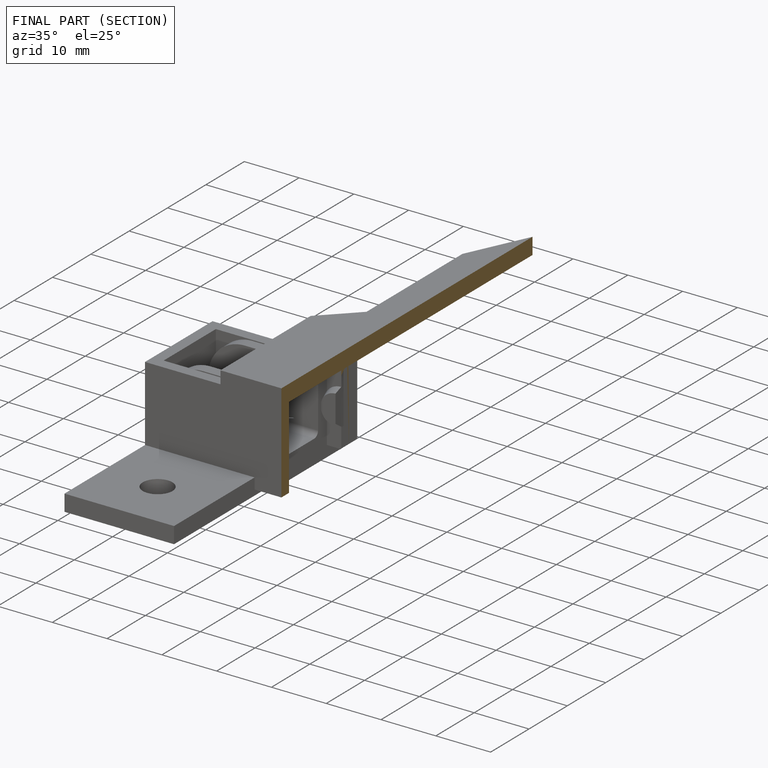
[diagram: finished part — half-section view (interior)]
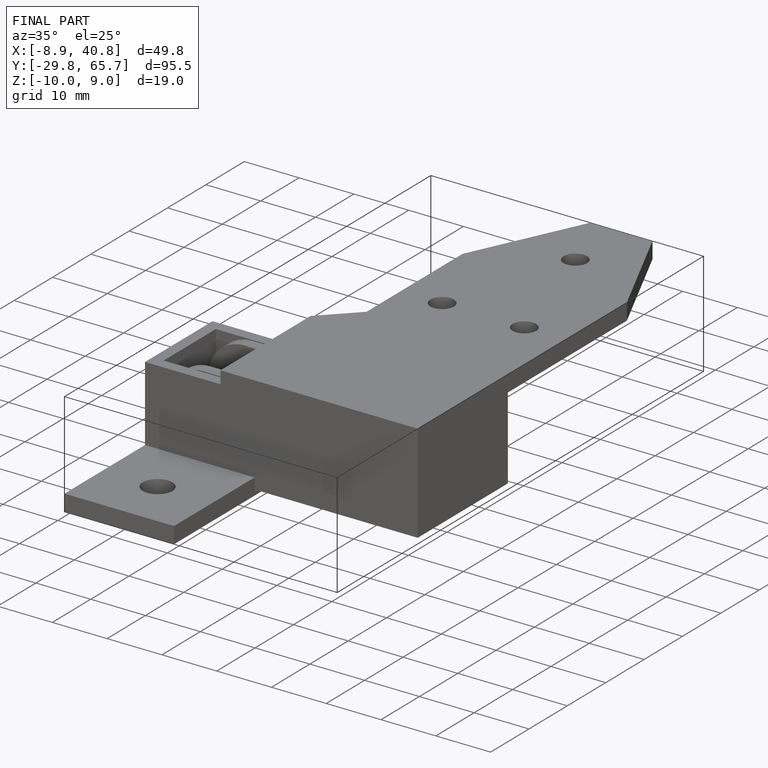
[diagram: finished part — iso view with bounding-box wireframe]
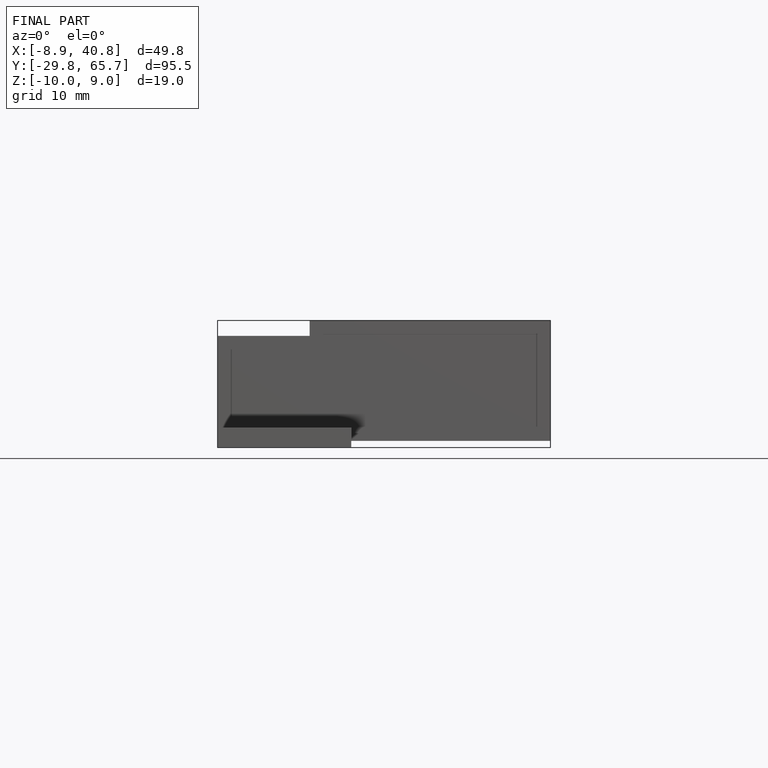
[diagram: finished part — front view with bounding-box wireframe]
